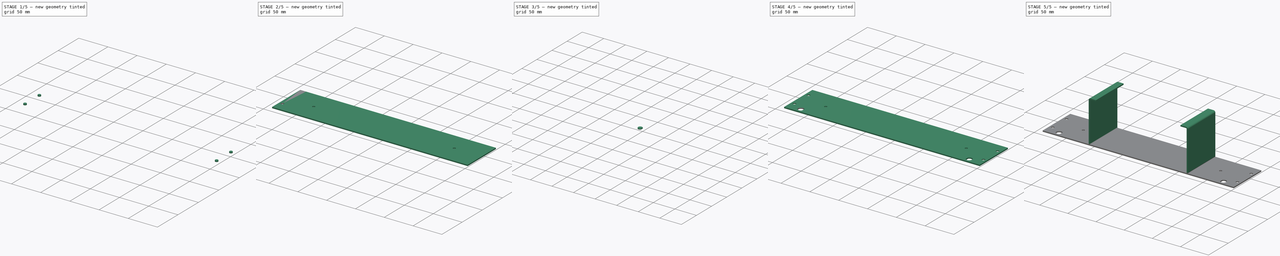
[diagram: build sequence overview — one tinted view per stage of 5, left to right]
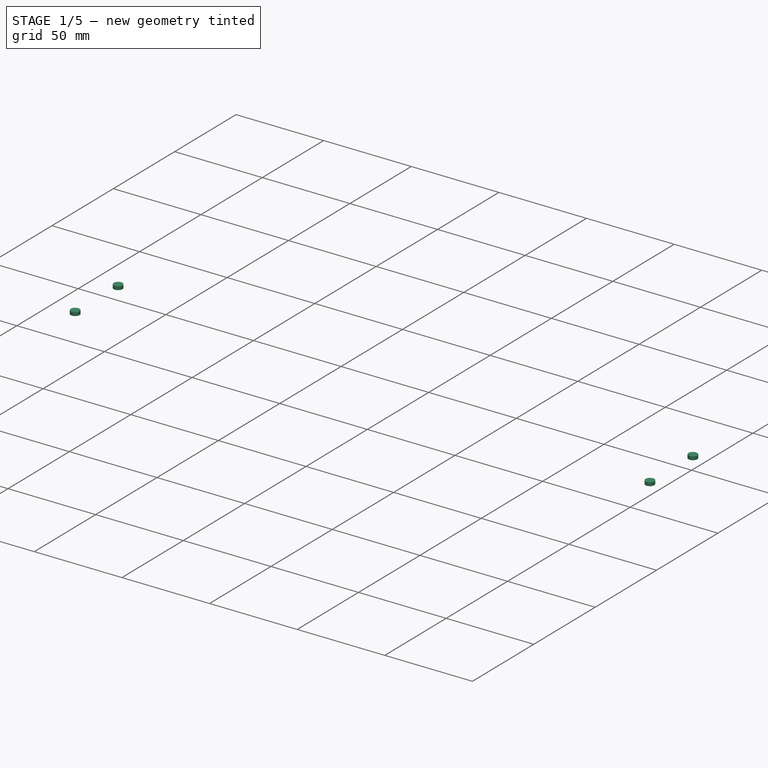
[diagram: stage 1 of 5 — iso view after this stage's code; geometry added in this stage tinted green]
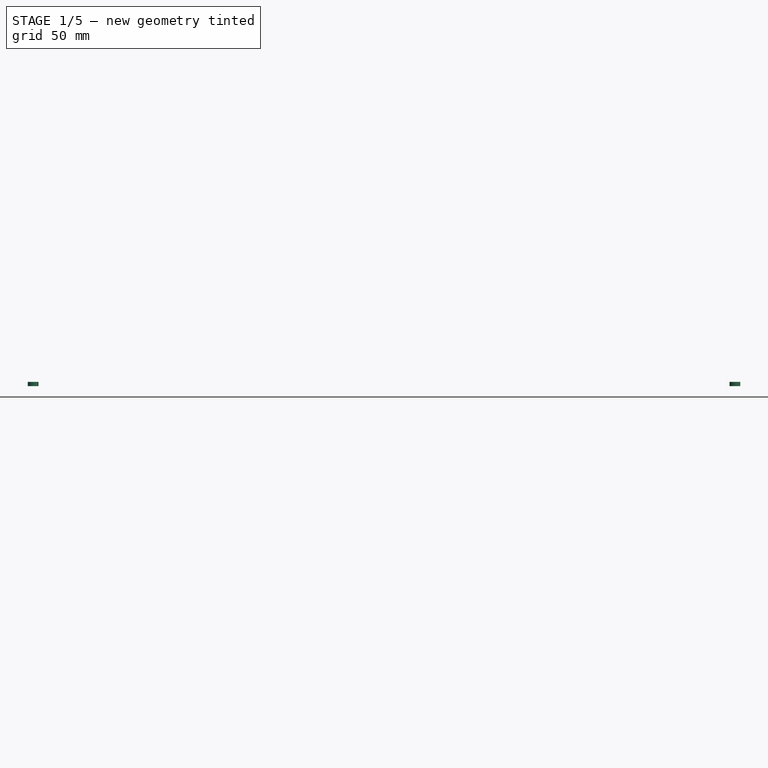
[diagram: stage 1 of 5 — front view after this stage's code; geometry added in this stage tinted green]
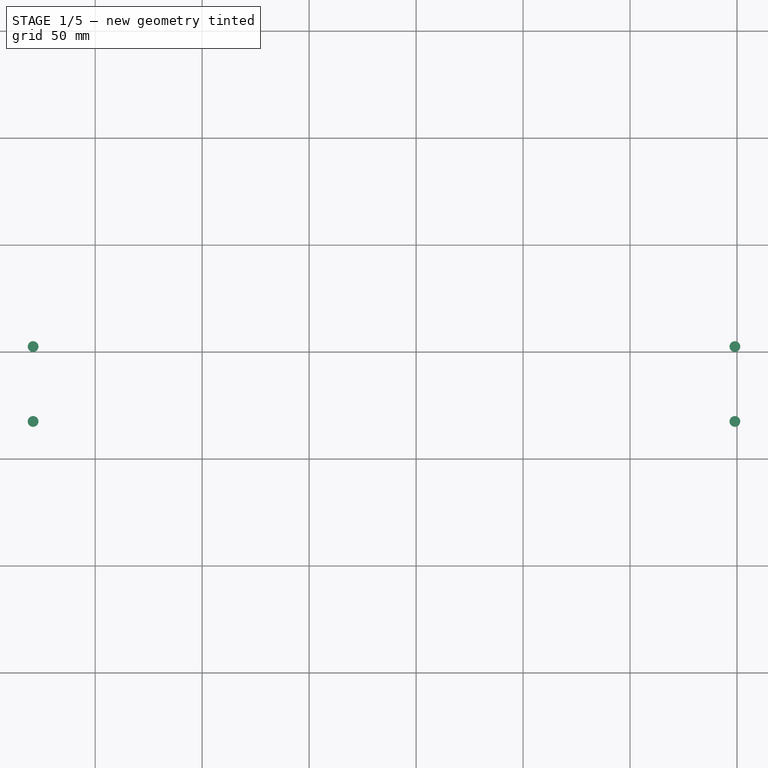
[diagram: stage 1 of 5 — top view after this stage's code; geometry added in this stage tinted green]
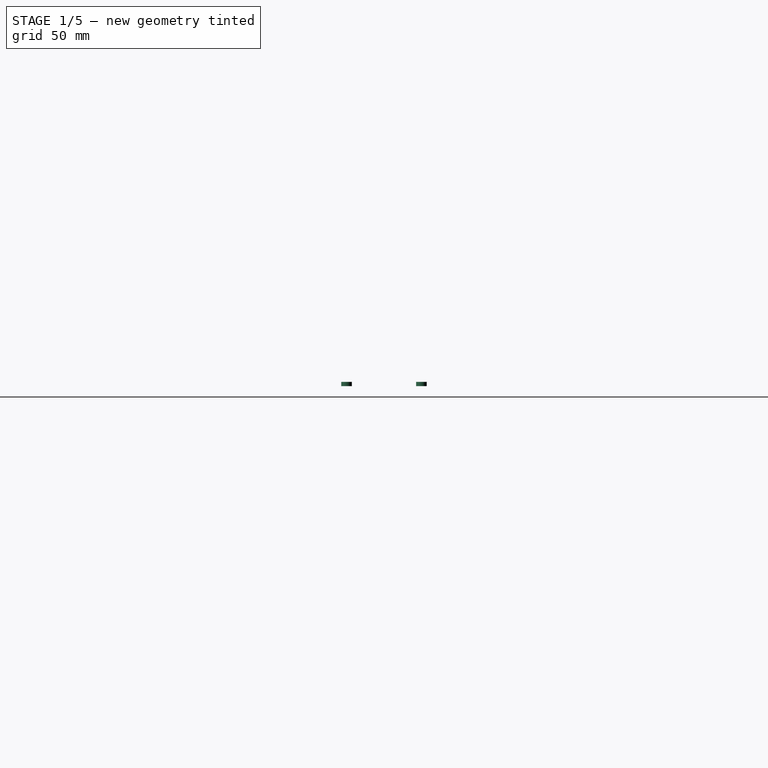
[diagram: stage 1 of 5 — right view after this stage's code; geometry added in this stage tinted green]
FCSTD DOCUMENT  (FreeCAD 0.17R11624 (Git))
Label: cover_base_unfolded
License: All rights reserved
LicenseURL: http://en.wikipedia.org/wiki/All_rights_reserved
objects: Drawing::FeatureViewPython×41, Part::Cut×8, Part::Cylinder×6, Part::FeaturePython×4, Sketcher::SketchObject×2, Part::Extrusion×2, Part::Box×1, Part::Feature×1, Drawing::FeatureViewPart×1, Part::Chamfer×1, Drawing::FeaturePage×1
note: 25 computed .brp shape members not serialized (recipe doc carries the construction recipe); baked Part::Feature solids carry a one-line shape summary decoded from their .brp

FEATURE [Part::Cylinder] Cylinder002  label="Top Hole Tool 1"
  Angle = 360
  AttacherType = Attacher::AttachEngine3D
  Height = 2
  Placement = pos=(-79,17.5,0) rot=(0,0,1;0rad)
  Radius = 2.5
FEATURE [Part::Cylinder] Cylinder003  label="Top Hole Tool 2"
  Angle = 360
  AttacherType = Attacher::AttachEngine3D
  Height = 2
  Placement = pos=(-79,52.5,0) rot=(0,0,1;0rad)
  Radius = 2.5
FEATURE [Part::Cylinder] Cylinder004  label="Top Hole Tool 3"
  Angle = 360
  AttacherType = Attacher::AttachEngine3D
  Height = 2
  Placement = pos=(249,17.5,0) rot=(0,0,1;0rad)
  Radius = 2.5
FEATURE [Part::Cylinder] Cylinder005  label="Top Hole Tool 4"
  Angle = 360
  AttacherType = Attacher::AttachEngine3D
  Height = 2
  Placement = pos=(249,52.5,0) rot=(0,0,1;0rad)
  Radius = 2.5
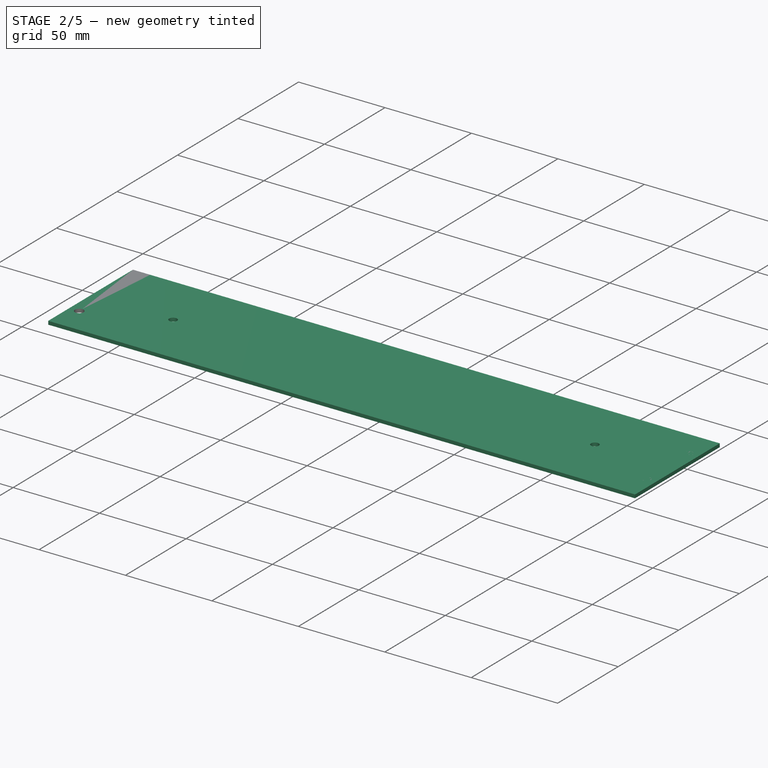
[diagram: stage 2 of 5 — iso view after this stage's code; geometry added in this stage tinted green]
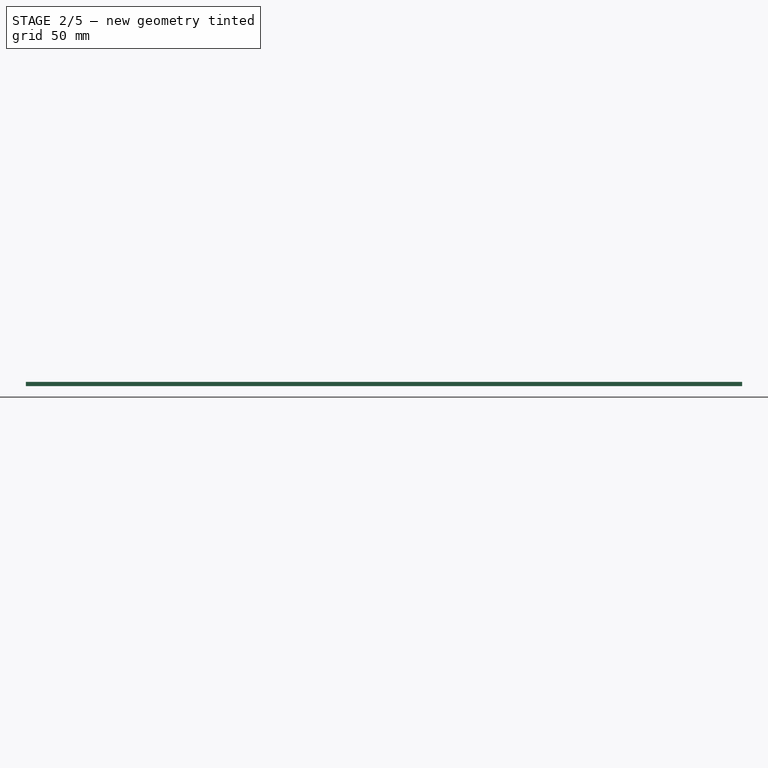
[diagram: stage 2 of 5 — front view after this stage's code; geometry added in this stage tinted green]
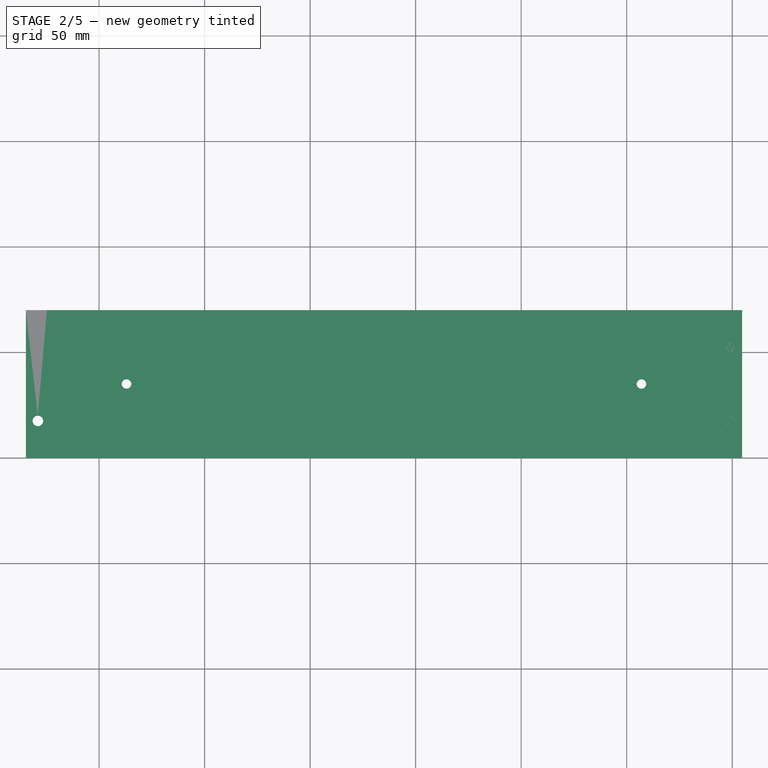
[diagram: stage 2 of 5 — top view after this stage's code; geometry added in this stage tinted green]
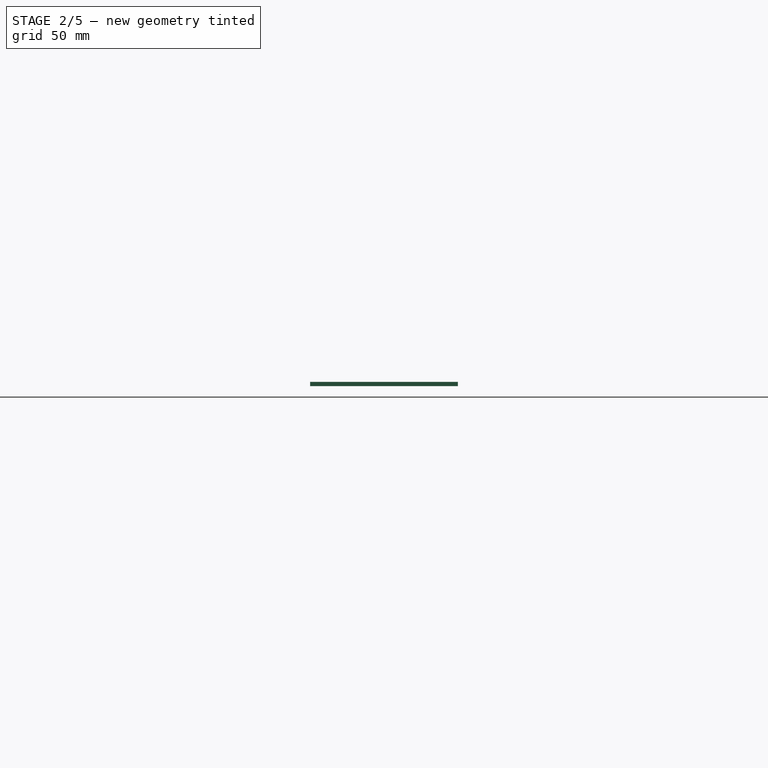
[diagram: stage 2 of 5 — right view after this stage's code; geometry added in this stage tinted green]
FEATURE [Part::Feature] Unfold
  shape: bbox 339.4 x 70 x 2 mm, 38 faces (baked)
FEATURE [Part::Cylinder] Cylinder  label="Core Mounting Hole Tool"
  Angle = 360
  AttacherType = Attacher::AttachEngine3D
  Height = 2
  Placement = pos=(-37,35,0) rot=(0,0,1;0rad)
  Radius = 2.25
FEATURE [Part::Cut] Cut
  Base = -> Unfold
  Tool = -> Cylinder
FEATURE [Part::Cylinder] Cylinder001  label="Core Mounting Hole Tool001"
  Angle = 360
  AttacherType = Attacher::AttachEngine3D
  Height = 2
  Placement = pos=(207,35,0) rot=(0,0,1;0rad)
  Radius = 2.25
FEATURE [Part::Cut] Cut001
  Base = -> Cut
  Tool = -> Cylinder001
FEATURE [Part::Cut] Cut002
  Base = -> Cut001
  Tool = -> Cylinder002
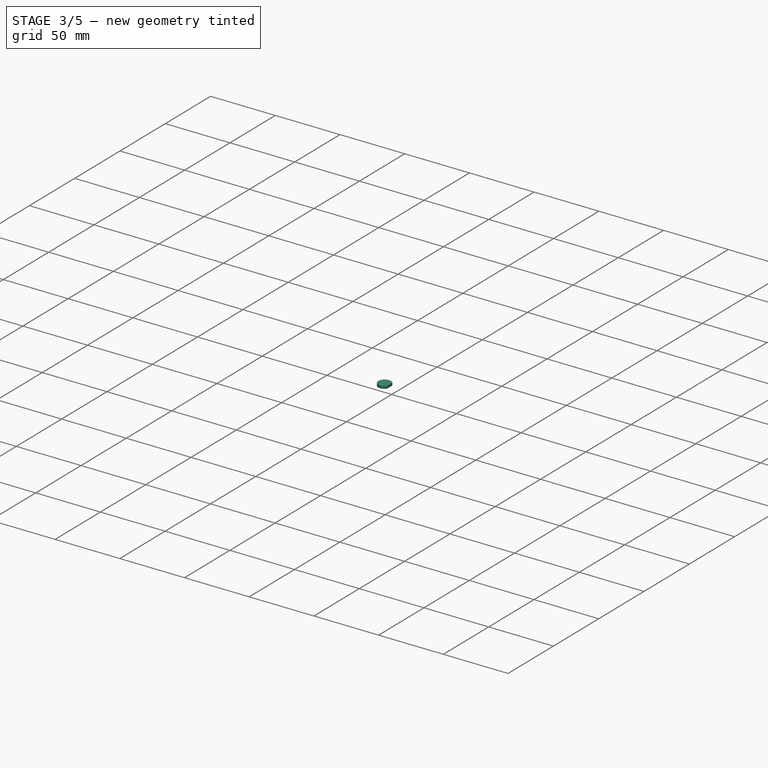
[diagram: stage 3 of 5 — iso view after this stage's code; geometry added in this stage tinted green]
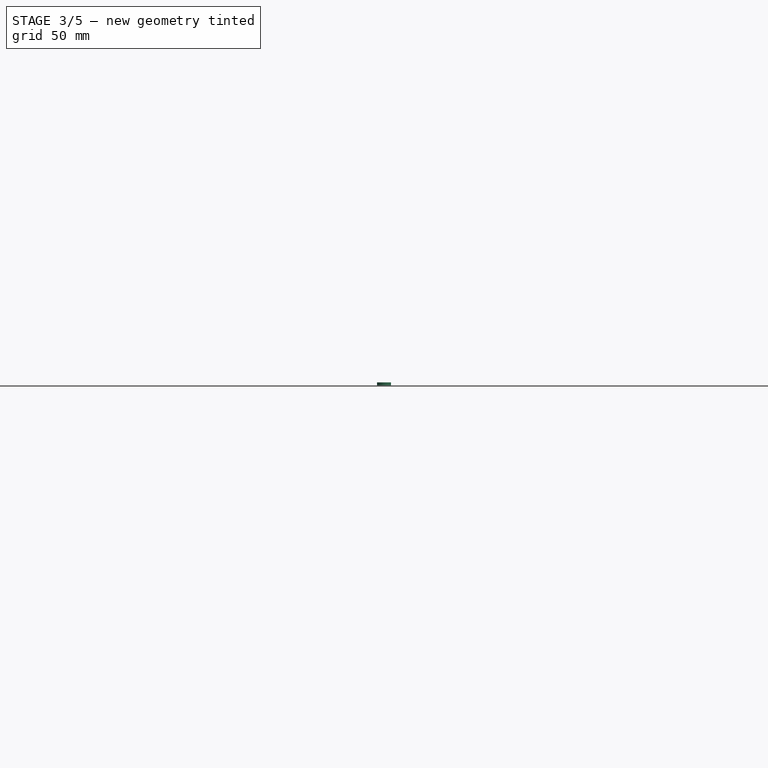
[diagram: stage 3 of 5 — front view after this stage's code; geometry added in this stage tinted green]
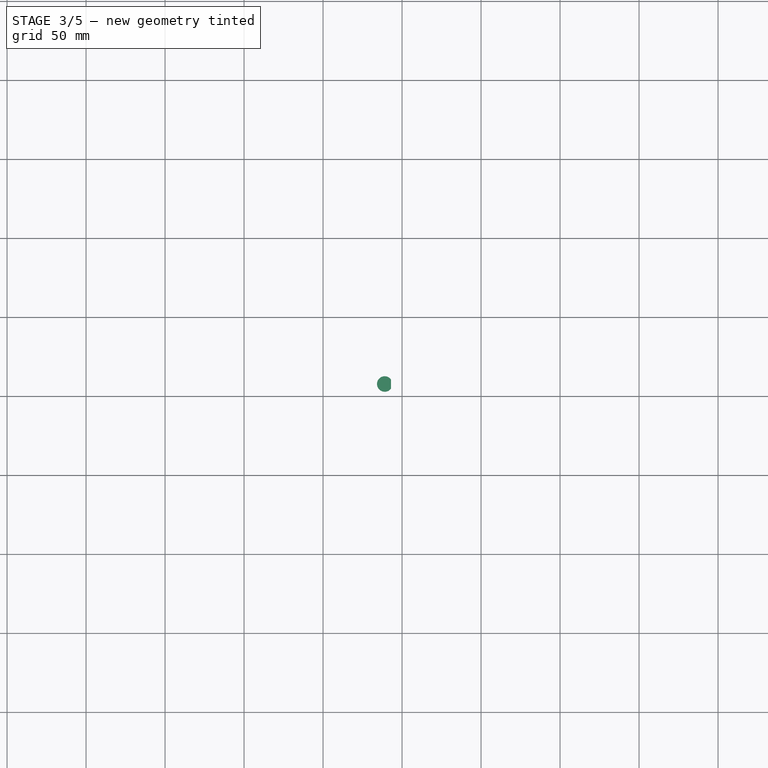
[diagram: stage 3 of 5 — top view after this stage's code; geometry added in this stage tinted green]
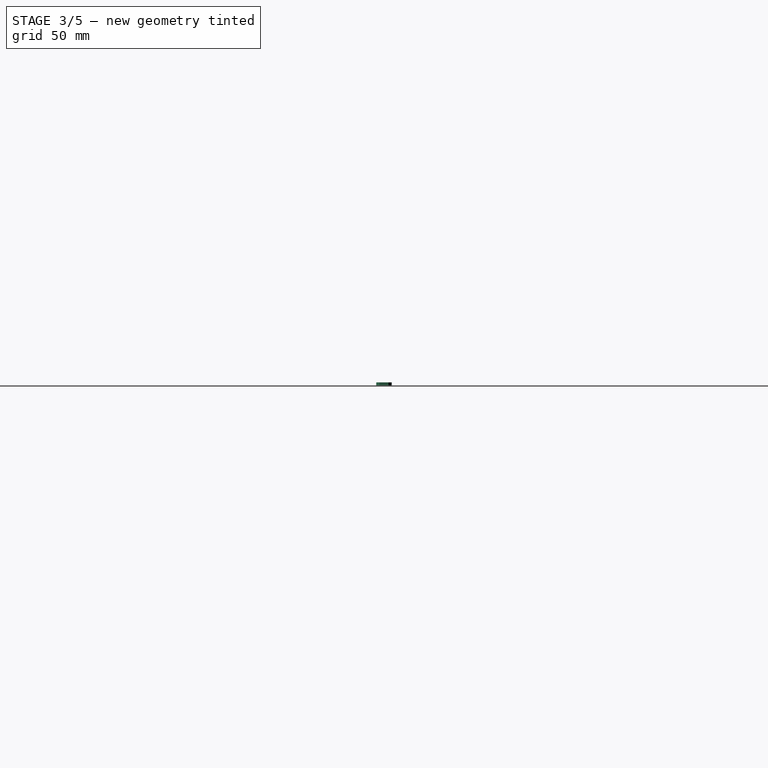
[diagram: stage 3 of 5 — right view after this stage's code; geometry added in this stage tinted green]
FEATURE [Part::Cut] Cut003
  Base = -> Cut002
  Tool = -> Cylinder003
FEATURE [Part::Cut] Cut004
  Base = -> Cut003
  Tool = -> Cylinder004
FEATURE [Part::Cut] Cut005
  Base = -> Cut004
  Tool = -> Cylinder005
FEATURE [Sketcher::SketchObject] Sketch
  MapMode = 5
  Placement = pos=(0,0,2) rot=(0,0,1;0rad)
  Support = -> [Cut005]
  sketch-geometry (2):
    g0: LineSegment StartX=-57 StartY=10.75 StartZ=0 EndX=-57 EndY=5 EndZ=0
    g1: ArcOfCircle CenterX=-60.9679 CenterY=7.875 CenterZ=0 NormalX=0 NormalY=0 NormalZ=1 Radius=4.9 StartAngle=0.627021 EndAngle=5.65616
  constraints (7):
    c: Vertical(g0)
    c: DistanceX(g0,g-1) = 57
    c: DistanceY(g-1,g0) = 5
    c: DistanceY(g-1,g0) = 10.75
    c: Coincident(g1,g0)
    c: Coincident(g0,g1)
    c: Radius(g1) = 4.9
FEATURE [Part::Extrusion] Extrude
  Base = -> Sketch
  Dir = (0,0,1)
  DirMode = 2
  FaceMakerClass = Part::FaceMakerBullseye
  LengthFwd = 2
  LengthRev = 0
  Reversed = true
  Solid = true
  Symmetric = false
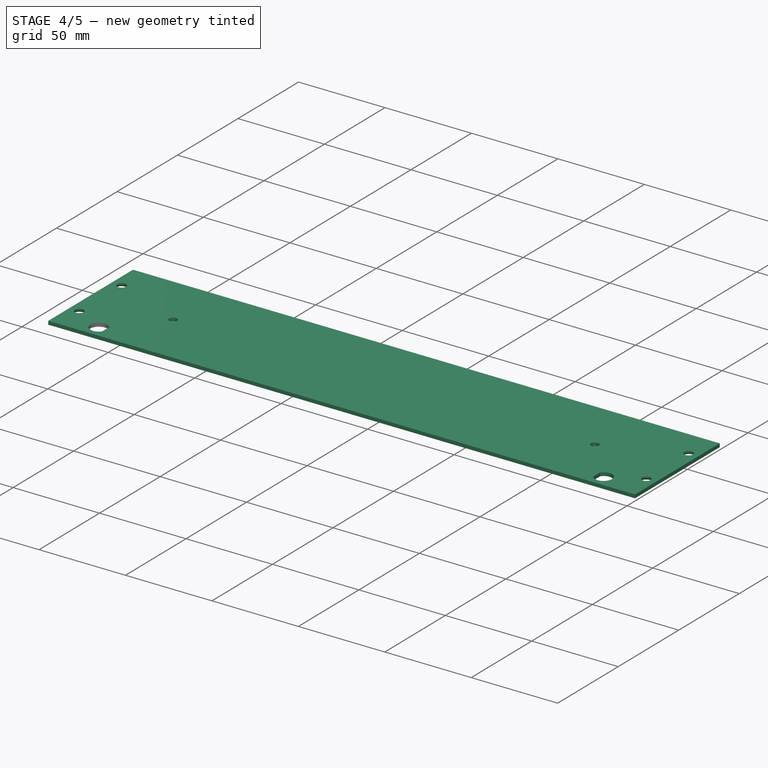
[diagram: stage 4 of 5 — iso view after this stage's code; geometry added in this stage tinted green]
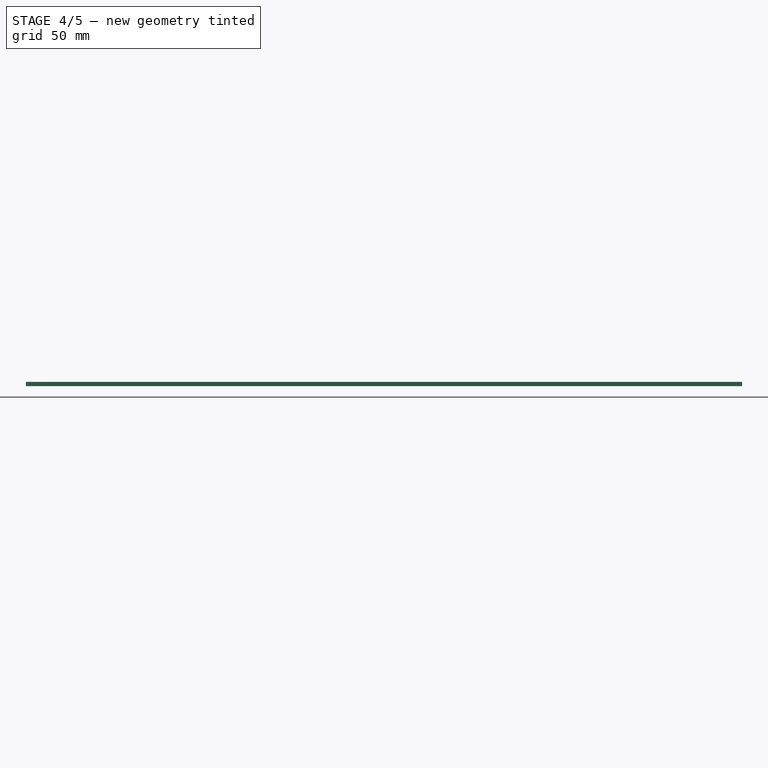
[diagram: stage 4 of 5 — front view after this stage's code; geometry added in this stage tinted green]
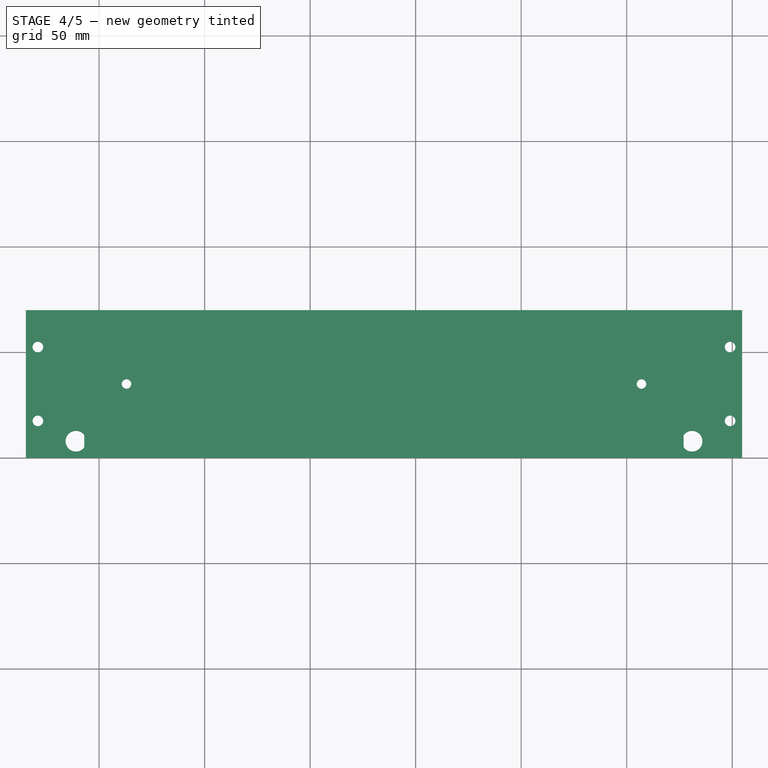
[diagram: stage 4 of 5 — top view after this stage's code; geometry added in this stage tinted green]
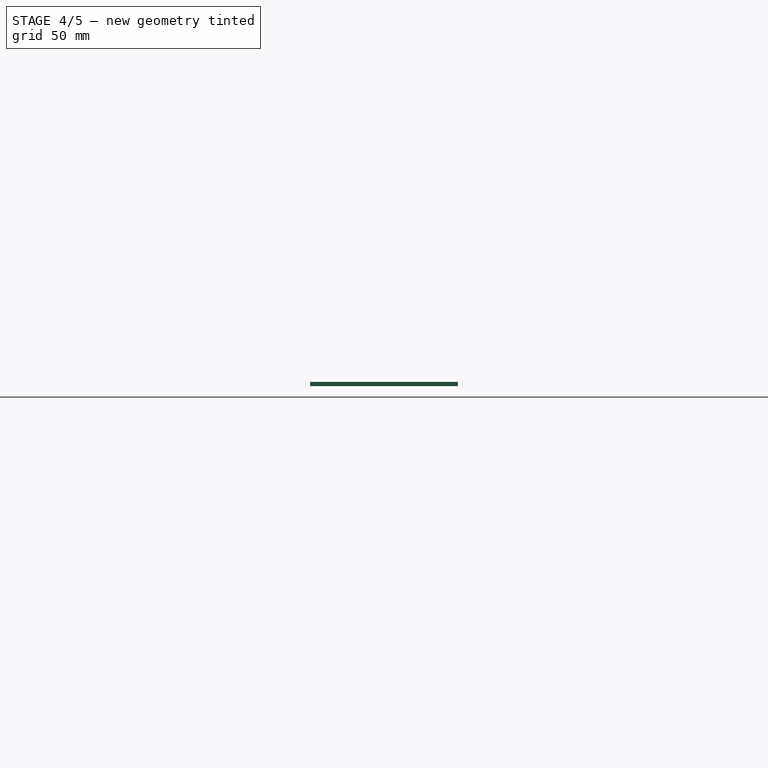
[diagram: stage 4 of 5 — right view after this stage's code; geometry added in this stage tinted green]
FEATURE [Part::Box] Box  label="Cube"
  AttacherType = Attacher::AttachEngine3D
  Height = 2
  Length = 170
  Width = 70
FEATURE [Part::Cut] Cut006
  Base = -> Cut005
  Tool = -> Extrude
FEATURE [Sketcher::SketchObject] Sketch001
  MapMode = 5
  Placement = pos=(0,0,2) rot=(0,0,1;0rad)
  Support = -> [Cut006]
  sketch-geometry (2):
    g0: LineSegment StartX=227 StartY=10.75 StartZ=0 EndX=227 EndY=5 EndZ=0
    g1: ArcOfCircle CenterX=230.968 CenterY=7.875 CenterZ=0 NormalX=0 NormalY=0 NormalZ=1 Radius=4.9 StartAngle=3.76861 EndAngle=8.79776
  constraints (7):
    c: Coincident(g1,g0)
    c: Coincident(g1,g0)
    c: Vertical(g0)
    c: Radius(g1) = 4.9
    c: DistanceX(g-1,g0) = 227
    c: DistanceY(g-1,g0) = 5
    c: DistanceY(g-1,g0) = 10.75
FEATURE [Part::Extrusion] Extrude001
  Base = -> Sketch001
  Dir = (0,0,1)
  DirMode = 2
  FaceMakerClass = Part::FaceMakerBullseye
  LengthFwd = 2
  LengthRev = 0
  Reversed = true
  Solid = true
  Symmetric = false
FEATURE [Part::Cut] Cut007
  Base = -> Cut006
  Tool = -> Extrude001
FEATURE [Drawing::FeatureViewPart] Ortho001  label="Ortho_0_1"
  Direction = (0,0,1)
  HiddenWidth = 0.15
  LineWidth = 0.35
  Rotation = 0
  ShowHiddenLines = true
  ShowSmoothLines = false
  Source = -> Cut007
  Tolerance = 0.05
  ViewResult = <blob: 3761 chars omitted>
  Visible = true
  X = 120.5
  Y = 120
FEATURE [Drawing::FeatureViewPython] dim001  # drawing view (typed FeaturePython)
  Rotation = 0
  ViewResult = <g> <line x1="35.789200" y1="122.000000" x2="35.789200" y2="196.477098" style="stroke:rgb(0,0,255);stroke-width:0.50" />\n<line x1="375.211000" y1="122.000000" x2="375.211000" y2="196.477098" style="stroke:rgb(0,0,255);stroke-width:0.50" />\n<line x1="35.789200" y1="195.477098" x2="375.211000" y2="195.477098" style="stroke:rgb(0,0,255);stroke-width:0.50" />\n<polygon points="35.789200,195.477098 38.789200,196.477098 39.789200,195.477098 38.789200,194.477098" style="fill:rgb(0,0,255);stroke:rgb(0,0,255);stroke-width:0" />\n<polygon points="375.211000,195.477098 372.211000,194.477098 371.211000,195.477098 372.211000,196.477098" style="fill:rgb(0,0,255);stroke:rgb(0,0,255);stroke-width:0" />\n<text x="205.500100" y="193.477098" font-family="inherit" font-size="3.6" fill="rgb(0,0,255)" text-anchor="middle" transform="rotate(0.000000 205.500100,193.477098)" >339.422</text> </g> 
  Visible = true
  X = 0
  Y = 0
  arrowL1 = 3
  arrowL2 = 1
  arrowW = 2
  arrow_scheme = 0
  autoPlaceOffset = 2
  autoPlaceText = true
  click1_x = 323.933
  click1_y = 195.477
  click2_x = 323.933
  click2_y = 195.477
  comma_decimal_place = false
  dimension_line_overshoot = 1
  gap_datum_points = 2
  halfDimension_linear = false
  lineColor = rgb(0,0,255)
  strokeWidth = 0.5
  textFormat_linear = %(value)3.3f
  textRenderer_color = rgb(0,0,255)
  textRenderer_family = inherit
  textRenderer_size = 3.6
  unit_custom_scale = 1
  unit_scheme = 0
FEATURE [Drawing::FeatureViewPython] dim003  # drawing view (typed FeaturePython)
  Rotation = 0
  ViewResult = <g> \n  <line x1="33.789200" y1="120.000000" x2="19.664722" y2="120.000000" style="stroke:rgb(0,0,255);stroke-width:0.50" />\n<line x1="33.789200" y1="50.000000" x2="19.664722" y2="50.000000" style="stroke:rgb(0,0,255);stroke-width:0.50" />\n<line x1="20.664722" y1="120.000000" x2="20.664722" y2="50.000000" style="stroke:rgb(0,0,255);stroke-width:0.50" /> \n  <polygon points="20.664722,50.000000 19.664722,53.000000 20.664722,54.000000 21.664722,53.000000" style="fill:rgb(0,0,255);stroke:rgb(0,0,255);stroke-width:0" /><polygon points="20.664722,120.000000 21.664722,117.000000 20.664722,116.000000 19.664722,117.000000" style="fill:rgb(0,0,255);stroke:rgb(0,0,255);stroke-width:0" /> \n  <text x="18.664722" y="85.000000" font-family="inherit" font-size="3.6" fill="rgb(0,0,255)" text-anchor="middle" transform="rotate(-90.000000 18.664722,85.000000)" >70</text> </g>
  Visible = true
  X = 0
  Y = 0
  arrowL1 = 3
  arrowL2 = 1
  arrowW = 2
  arrow_scheme = 0
  autoPlaceOffset = 2
  autoPlaceText = true
  click1_x = 20.6647
  click1_y = 107.792
  click2_x = 20.6647
  click2_y = 107.792
  comma_decimal_place = false
  dimension_line_overshoot = 1
  gap_datum_points = 2
  halfDimension_linear = false
  lineColor = rgb(0,0,255)
  strokeWidth = 0.5
  textFormat_linear = %(value)3.3f
  textRenderer_color = rgb(0,0,255)
  textRenderer_family = inherit
  textRenderer_size = 3.6
  unit_custom_scale = 1
  unit_scheme = 0
FEATURE [Drawing::FeatureViewPython] dim004  # drawing view (typed FeaturePython)
  Rotation = 0
  ViewResult = <g> <line x1="347.500000" y1="117.000000" x2="347.500000" y2="168.228794" style="stroke:rgb(0,0,255);stroke-width:0.50" />\n<line x1="35.789200" y1="122.000000" x2="35.789200" y2="168.228794" style="stroke:rgb(0,0,255);stroke-width:0.50" />\n<line x1="347.500000" y1="167.228794" x2="35.789200" y2="167.228794" style="stroke:rgb(0,0,255);stroke-width:0.50" />\n<polygon points="347.500000,167.228794 344.500000,166.228794 343.500000,167.228794 344.500000,168.228794" style="fill:rgb(0,0,255);stroke:rgb(0,0,255);stroke-width:0" />\n<polygon points="35.789200,167.228794 38.789200,168.228794 39.789200,167.228794 38.789200,166.228794" style="fill:rgb(0,0,255);stroke:rgb(0,0,255);stroke-width:0" />\n<text x="191.644600" y="165.228794" font-family="inherit" font-size="3.6" fill="rgb(0,0,255)" text-anchor="middle" transform="rotate(0.000000 191.644600,165.228794)" >311.711</text> </g> 
  Visible = true
  X = 0
  Y = 0
  arrowL1 = 3
  arrowL2 = 1
  arrowW = 2
  arrow_scheme = 0
  autoPlaceOffset = 2
  autoPlaceText = true
  click1_x = 58.632
  click1_y = 167.229
  click2_x = 58.632
  click2_y = 167.229
  comma_decimal_place = false
  dimension_line_overshoot = 1
  gap_datum_points = 2
  halfDimension_linear = false
  lineColor = rgb(0,0,255)
  strokeWidth = 0.5
  textFormat_linear = %(value)3.3f
  textRenderer_color = rgb(0,0,255)
  textRenderer_family = inherit
  textRenderer_size = 3.6
  unit_custom_scale = 1
  unit_scheme = 0
FEATURE [Drawing::FeatureViewPython] centerLines001  # drawing view (typed FeaturePython)
  Rotation = 0
  ViewResult = <blob: 4965 chars omitted>
  Visible = true
  X = 0
  Y = 0
  centerLine_color = rgb(0,0,255)
  centerLine_len_dash = 6
  centerLine_len_dot = 3
  centerLine_len_gap = 2
  centerLine_width = 0.32
  click1_x = 84.0069
  click1_y = 119.863
  click2_x = 83.4987
  click2_y = 50.4533
FEATURE [Drawing::FeatureViewPython] centerLines002  # drawing view (typed FeaturePython)
  Rotation = 0
  ViewResult = <blob: 5563 chars omitted>
  Visible = true
  X = 0
  Y = 0
  centerLine_color = rgb(0,0,255)
  centerLine_len_dash = 6
  centerLine_len_dot = 3
  centerLine_len_gap = 2
  centerLine_width = 0.32
  click1_x = 41.6018
  click1_y = 120.38
  click2_x = 41.6018
  click2_y = 50.1583
FEATURE [Drawing::FeatureViewPython] centerLines003  # drawing view (typed FeaturePython)
  Rotation = 0
  ViewResult = <g transform="scale(1.000000,1.000000)" stroke="rgb(0,0,255)"  stroke-width="0.320000" > <path d="M 369.500000,102.500000 L 369.500000,105.500000 M 369.500000,107.500000 L 369.500000,113.500000 M 369.500000,115.500000 L 369.500000,118.500000 "/>\n<path d="M 369.500000,102.500000 L 366.500000,102.500000 M 364.500000,102.500000 L 358.500000,102.500000 M 356.500000,102.500000 L 353.500000,102.500000 M 351.500000,102.500000 L 345.500000,102.500000 M 343.500000,102.500000 L 340.500000,102.500000 M 338.500000,102.500000 L 332.500000,102.500000 M 330.500000,102.500000 L 327.500000,102.500000 "/>\n<path d="M 369.500000,102.500000 L 369.500000,99.500000 M 369.500000,97.500000 L 369.500000,91.500000 M 369.500000,89.500000 L 369.500000,86.500000 M 369.500000,84.500000 L 369.500000,78.500000 M 369.500000,76.500000 L 369.500000,73.500000 M 369.500000,71.500000 L 369.500000,65.500000 M 369.500000,63.500000 L 369.500000,60.500000 M 369.500000,58.500000 L 369.500000,52.500000 "/>\n<path d="M 369.500000,102.500000 L 366.500000,102.500000 M 364.500000,102.500000 L 358.500000,102.500000 M 356.500000,102.500000 L 353.500000,102.500000 M 351.500000,102.500000 L 345.500000,102.500000 M 343.500000,102.500000 L 340.500000,102.500000 M 338.500000,102.500000 L 332.500000,102.500000 M 330.500000,102.500000 L 327.500000,102.500000 "/> </g> 
  Visible = true
  X = 0
  Y = 0
  centerLine_color = rgb(0,0,255)
  centerLine_len_dash = 6
  centerLine_len_dot = 3
  centerLine_len_gap = 2
  centerLine_width = 0.32
  click1_x = 327.15
  click1_y = 118.964
  click2_x = 327.15
  click2_y = 50.5595
FEATURE [Drawing::FeatureViewPython] centerLines004  # drawing view (typed FeaturePython)
  Rotation = 0
  ViewResult = <blob: 3039 chars omitted>
  Visible = true
  X = 0
  Y = 0
  centerLine_color = rgb(0,0,255)
  centerLine_len_dash = 6
  centerLine_len_dot = 3
  centerLine_len_gap = 2
  centerLine_width = 0.32
  click1_x = 373.886
  click1_y = 82.8496
  click2_x = 36.1139
  click2_y = 84.1242
FEATURE [Drawing::FeatureViewPython] centerLines005  # drawing view (typed FeaturePython)
  Rotation = 0
  ViewResult = <g transform="scale(1.000000,1.000000)" stroke="rgb(0,0,255)"  stroke-width="0.320000" > <path d="M 369.500000,102.500000 L 369.500000,105.500000 M 369.500000,107.500000 L 369.500000,113.500000 M 369.500000,115.500000 L 369.500000,118.500000 "/>\n<path d="M 369.500000,102.500000 L 370.061687,102.500000 "/>\n<path d="M 369.500000,102.500000 L 369.500000,99.500000 M 369.500000,97.500000 L 369.500000,91.500000 M 369.500000,89.500000 L 369.500000,86.500000 M 369.500000,84.500000 L 369.500000,78.500000 M 369.500000,76.500000 L 369.500000,73.500000 M 369.500000,71.500000 L 369.500000,65.500000 M 369.500000,63.500000 L 369.500000,60.500000 M 369.500000,58.500000 L 369.500000,52.500000 "/>\n<path d="M 369.500000,102.500000 L 368.362207,102.500000 "/> </g> 
  Visible = true
  X = 0
  Y = 0
  centerLine_color = rgb(0,0,255)
  centerLine_len_dash = 6
  centerLine_len_dot = 3
  centerLine_len_gap = 2
  centerLine_width = 0.32
  click1_x = 370.062
  click1_y = 118.964
  click2_x = 368.362
  click2_y = 50.5595
FEATURE [Drawing::FeatureViewPython] dim002  # drawing view (typed FeaturePython)
  Rotation = 0
  ViewResult = <g> <line x1="35.789200" y1="48.000000" x2="35.789200" y2="39.978965" style="stroke:rgb(0,0,255);stroke-width:0.50" />\n<line x1="41.601845" y1="100.499930" x2="41.601845" y2="39.978965" style="stroke:rgb(0,0,255);stroke-width:0.50" />\n<line x1="35.789200" y1="40.978965" x2="41.601845" y2="40.978965" style="stroke:rgb(0,0,255);stroke-width:0.50" />\n<polygon points="35.789200,40.978965 32.789200,39.978965 31.789200,40.978965 32.789200,41.978965" style="fill:rgb(0,0,255);stroke:rgb(0,0,255);stroke-width:0" />\n<polygon points="41.601845,40.978965 44.601845,41.978965 45.601845,40.978965 44.601845,39.978965" style="fill:rgb(0,0,255);stroke:rgb(0,0,255);stroke-width:0" />\n<text x="38.695522" y="38.978965" font-family="inherit" font-size="3.6" fill="rgb(0,0,255)" text-anchor="middle" transform="rotate(0.000000 38.695522,38.978965)" >5.813</text> </g> 
  Visible = true
  X = 0
  Y = 0
  arrowL1 = 3
  arrowL2 = 1
  arrowW = 2
  arrow_scheme = 0
  autoPlaceOffset = 2
  autoPlaceText = true
  click1_x = 41.5936
  click1_y = 40.979
  click2_x = 41.5936
  click2_y = 40.979
  comma_decimal_place = false
  dimension_line_overshoot = 1
  gap_datum_points = 2
  halfDimension_linear = false
  lineColor = rgb(0,0,255)
  strokeWidth = 0.5
  textFormat_linear = %(value)3.3f
  textRenderer_color = rgb(0,0,255)
  textRenderer_family = inherit
  textRenderer_size = 3.6
  unit_custom_scale = 1
  unit_scheme = 0
FEATURE [Drawing::FeatureViewPython] dim006  # drawing view (typed FeaturePython)
  Rotation = 0
  ViewResult = <g> <line x1="63.500000" y1="117.000000" x2="63.500000" y2="139.967864" style="stroke:rgb(0,0,255);stroke-width:0.50" />\n<line x1="35.789200" y1="122.000000" x2="35.789200" y2="139.967864" style="stroke:rgb(0,0,255);stroke-width:0.50" />\n<line x1="63.500000" y1="138.967864" x2="35.789200" y2="138.967864" style="stroke:rgb(0,0,255);stroke-width:0.50" />\n<polygon points="63.500000,138.967864 60.500000,137.967864 59.500000,138.967864 60.500000,139.967864" style="fill:rgb(0,0,255);stroke:rgb(0,0,255);stroke-width:0" />\n<polygon points="35.789200,138.967864 38.789200,139.967864 39.789200,138.967864 38.789200,137.967864" style="fill:rgb(0,0,255);stroke:rgb(0,0,255);stroke-width:0" />\n<text x="49.644600" y="136.967864" font-family="inherit" font-size="3.6" fill="rgb(0,0,255)" text-anchor="middle" transform="rotate(0.000000 49.644600,136.967864)" >27.711</text> </g> 
  Visible = true
  X = 0
  Y = 0
  arrowL1 = 3
  arrowL2 = 1
  arrowW = 2
  arrow_scheme = 0
  autoPlaceOffset = 2
  autoPlaceText = true
  click1_x = 46.6177
  click1_y = 138.968
  click2_x = 46.6177
  click2_y = 138.968
  comma_decimal_place = false
  dimension_line_overshoot = 1
  gap_datum_points = 2
  halfDimension_linear = false
  lineColor = rgb(0,0,255)
  strokeWidth = 0.5
  textFormat_linear = %(value)3.3f
  textRenderer_color = rgb(0,0,255)
  textRenderer_family = inherit
  textRenderer_size = 3.6
  unit_custom_scale = 1
  unit_scheme = 0
FEATURE [Drawing::FeatureViewPython] dim007  # drawing view (typed FeaturePython)
  Rotation = 0
  ViewResult = <g> <line x1="35.789200" y1="122.000000" x2="35.789200" y2="182.096548" style="stroke:rgb(0,0,255);stroke-width:0.50" />\n<line x1="369.500000" y1="120.500070" x2="369.500000" y2="182.096548" style="stroke:rgb(0,0,255);stroke-width:0.50" />\n<line x1="35.789200" y1="181.096548" x2="369.500000" y2="181.096548" style="stroke:rgb(0,0,255);stroke-width:0.50" />\n<polygon points="35.789200,181.096548 38.789200,182.096548 39.789200,181.096548 38.789200,180.096548" style="fill:rgb(0,0,255);stroke:rgb(0,0,255);stroke-width:0" />\n<polygon points="369.500000,181.096548 366.500000,180.096548 365.500000,181.096548 366.500000,182.096548" style="fill:rgb(0,0,255);stroke:rgb(0,0,255);stroke-width:0" />\n<text x="202.644600" y="179.096548" font-family="inherit" font-size="3.6" fill="rgb(0,0,255)" text-anchor="middle" transform="rotate(0.000000 202.644600,179.096548)" >333.711</text> </g> 
  Visible = true
  X = 0
  Y = 0
  arrowL1 = 3
  arrowL2 = 1
  arrowW = 2
  arrow_scheme = 0
  autoPlaceOffset = 2
  autoPlaceText = true
  click1_x = 354.24
  click1_y = 181.097
  click2_x = 354.24
  click2_y = 181.097
  comma_decimal_place = false
  dimension_line_overshoot = 1
  gap_datum_points = 2
  halfDimension_linear = false
  lineColor = rgb(0,0,255)
  strokeWidth = 0.5
  textFormat_linear = %(value)3.3f
  textRenderer_color = rgb(0,0,255)
  textRenderer_family = inherit
  textRenderer_size = 3.6
  unit_custom_scale = 1
  unit_scheme = 0
FEATURE [Drawing::FeatureViewPython] dim008  # drawing view (typed FeaturePython)
  Rotation = 0
  ViewResult = <g> <line x1="35.789200" y1="122.000000" x2="35.789200" y2="159.051604" style="stroke:rgb(0,0,255);stroke-width:0.50" />\n<line x1="369.500000" y1="120.500070" x2="369.500000" y2="159.051604" style="stroke:rgb(0,0,255);stroke-width:0.50" />\n<line x1="35.789200" y1="158.051604" x2="369.500000" y2="158.051604" style="stroke:rgb(0,0,255);stroke-width:0.50" />\n<polygon points="35.789200,158.051604 38.789200,159.051604 39.789200,158.051604 38.789200,157.051604" style="fill:rgb(0,0,255);stroke:rgb(0,0,255);stroke-width:0" />\n<polygon points="369.500000,158.051604 366.500000,157.051604 365.500000,158.051604 366.500000,159.051604" style="fill:rgb(0,0,255);stroke:rgb(0,0,255);stroke-width:0" />\n<text x="202.644600" y="156.051604" font-family="inherit" font-size="3.6" fill="rgb(0,0,255)" text-anchor="middle" transform="rotate(0.000000 202.644600,156.051604)" >333.711</text> </g> 
  Visible = true
  X = 0
  Y = 0
  arrowL1 = 3
  arrowL2 = 1
  arrowW = 2
  arrow_scheme = 0
  autoPlaceOffset = 2
  autoPlaceText = true
  click1_x = 320.777
  click1_y = 158.052
  click2_x = 320.777
  click2_y = 158.052
  comma_decimal_place = false
  dimension_line_overshoot = 1
  gap_datum_points = 2
  halfDimension_linear = false
  lineColor = rgb(0,0,255)
  strokeWidth = 0.5
  textFormat_linear = %(value)3.3f
  textRenderer_color = rgb(0,0,255)
  textRenderer_family = inherit
  textRenderer_size = 3.6
  unit_custom_scale = 1
  unit_scheme = 0
FEATURE [Drawing::FeatureViewPython] centerLines006  # drawing view (typed FeaturePython)
  Rotation = 0
  ViewResult = <blob: 3271 chars omitted>
  Visible = true
  X = 0
  Y = 0
  centerLine_color = rgb(0,0,255)
  centerLine_len_dash = 6
  centerLine_len_dot = 3
  centerLine_len_gap = 2
  centerLine_width = 0.32
  click1_x = 36.5227
  click1_y = 67.2276
  click2_x = 375.245
  click2_y = 68.3191
FEATURE [Drawing::FeatureViewPython] centerLines007  # drawing view (typed FeaturePython)
  Rotation = 0
  ViewResult = <blob: 2813 chars omitted>
  Visible = true
  X = 0
  Y = 0
  centerLine_color = rgb(0,0,255)
  centerLine_len_dash = 6
  centerLine_len_dot = 3
  centerLine_len_gap = 2
  centerLine_width = 0.32
  click1_x = 35.1792
  click1_y = 102.479
  click2_x = 375.755
  click2_y = 102.479
FEATURE [Drawing::FeatureViewPython] centerLines008  # drawing view (typed FeaturePython)
  Rotation = 0
  ViewResult = <blob: 2766 chars omitted>
  Visible = true
  X = 0
  Y = 0
  centerLine_color = rgb(0,0,255)
  centerLine_len_dash = 6
  centerLine_len_dot = 3
  centerLine_len_gap = 2
  centerLine_width = 0.32
  click1_x = 376.061
  click1_y = 111.701
  click2_x = 36.3029
  click2_y = 111.236
FEATURE [Drawing::FeatureViewPython] dim010  # drawing view (typed FeaturePython)
  Rotation = 0
  ViewResult = <g> <line x1="33.789200" y1="120.000000" x2="13.813768" y2="120.000000" style="stroke:rgb(0,0,255);stroke-width:0.50" />\n<line x1="34.467908" y1="112.125000" x2="13.813768" y2="112.125000" style="stroke:rgb(0,0,255);stroke-width:0.50" />\n<line x1="14.813768" y1="120.000000" x2="14.813768" y2="112.125000" style="stroke:rgb(0,0,255);stroke-width:0.50" />\n<polygon points="14.813768,120.000000 13.813768,123.000000 14.813768,124.000000 15.813768,123.000000" style="fill:rgb(0,0,255);stroke:rgb(0,0,255);stroke-width:0" />\n<polygon points="14.813768,112.125000 15.813768,109.125000 14.813768,108.125000 13.813768,109.125000" style="fill:rgb(0,0,255);stroke:rgb(0,0,255);stroke-width:0" />\n<text x="12.813768" y="116.062500" font-family="inherit" font-size="3.2" fill="rgb(0,0,255)" text-anchor="middle" transform="rotate(-90.000000 12.813768,116.062500)" >7.875</text> </g> 
  Visible = true
  X = 0
  Y = 0
  arrowL1 = 3
  arrowL2 = 1
  arrowW = 2
  arrow_scheme = 0
  autoPlaceOffset = 2
  autoPlaceText = true
  click1_x = 14.8138
  click1_y = 110.43
  click2_x = 14.8138
  click2_y = 110.43
  comma_decimal_place = false
  dimension_line_overshoot = 1
  gap_datum_points = 2
  halfDimension_linear = false
  lineColor = rgb(0,0,255)
  strokeWidth = 0.5
  textFormat_linear = %(value)3.3f
  textRenderer_color = rgb(0,0,255)
  textRenderer_family = inherit
  textRenderer_size = 3.2
  unit_custom_scale = 1
  unit_scheme = 0
FEATURE [Drawing::FeatureViewPython] dim011  # drawing view (typed FeaturePython)
  Rotation = 0
  ViewResult = <g> <line x1="377.211000" y1="120.000000" x2="385.936095" y2="120.000000" style="stroke:rgb(0,0,255);stroke-width:0.50" />\n<line x1="377.754953" y1="102.500000" x2="385.936095" y2="102.500000" style="stroke:rgb(0,0,255);stroke-width:0.50" />\n<line x1="384.936095" y1="120.000000" x2="384.936095" y2="102.500000" style="stroke:rgb(0,0,255);stroke-width:0.50" />\n<polygon points="384.936095,120.000000 385.936095,117.000000 384.936095,116.000000 383.936095,117.000000" style="fill:rgb(0,0,255);stroke:rgb(0,0,255);stroke-width:0" />\n<polygon points="384.936095,102.500000 383.936095,105.500000 384.936095,106.500000 385.936095,105.500000" style="fill:rgb(0,0,255);stroke:rgb(0,0,255);stroke-width:0" />\n<text x="382.936095" y="111.250000" font-family="inherit" font-size="3.6" fill="rgb(0,0,255)" text-anchor="middle" transform="rotate(-90.000000 382.936095,111.250000)" >17.5</text> </g> 
  Visible = true
  X = 0
  Y = 0
  arrowL1 = 3
  arrowL2 = 1
  arrowW = 2
  arrow_scheme = 0
  autoPlaceOffset = 2
  autoPlaceText = true
  click1_x = 384.936
  click1_y = 103.089
  click2_x = 384.936
  click2_y = 103.089
  comma_decimal_place = false
  dimension_line_overshoot = 1
  gap_datum_points = 2
  halfDimension_linear = false
  lineColor = rgb(0,0,255)
  strokeWidth = 0.5
  textFormat_linear = %(value)3.3f
  textRenderer_color = rgb(0,0,255)
  textRenderer_family = inherit
  textRenderer_size = 3.6
  unit_custom_scale = 1
  unit_scheme = 0
FEATURE [Drawing::FeatureViewPython] dim012  # drawing view (typed FeaturePython)
  Rotation = 0
  ViewResult = <g> <line x1="377.211000" y1="120.000000" x2="404.691670" y2="120.000000" style="stroke:rgb(0,0,255);stroke-width:0.50" />\n<line x1="371.500010" y1="76.500000" x2="404.691670" y2="76.500000" style="stroke:rgb(0,0,255);stroke-width:0.50" />\n<line x1="403.691670" y1="120.000000" x2="403.691670" y2="76.500000" style="stroke:rgb(0,0,255);stroke-width:0.50" />\n<polygon points="403.691670,120.000000 404.691670,117.000000 403.691670,116.000000 402.691670,117.000000" style="fill:rgb(0,0,255);stroke:rgb(0,0,255);stroke-width:0" />\n<polygon points="403.691670,76.500000 402.691670,79.500000 403.691670,80.500000 404.691670,79.500000" style="fill:rgb(0,0,255);stroke:rgb(0,0,255);stroke-width:0" />\n<text x="401.691670" y="98.250000" font-family="inherit" font-size="3.6" fill="rgb(0,0,255)" text-anchor="middle" transform="rotate(-90.000000 401.691670,98.250000)" >43.5</text> </g> 
  Visible = true
  X = 0
  Y = 0
  arrowL1 = 3
  arrowL2 = 1
  arrowW = 2
  arrow_scheme = 0
  autoPlaceOffset = 2
  autoPlaceText = true
  click1_x = 403.692
  click1_y = 73.0937
  click2_x = 403.692
  click2_y = 73.0937
  comma_decimal_place = false
  dimension_line_overshoot = 1
  gap_datum_points = 2
  halfDimension_linear = false
  lineColor = rgb(0,0,255)
  strokeWidth = 0.5
  textFormat_linear = %(value)3.3f
  textRenderer_color = rgb(0,0,255)
  textRenderer_family = inherit
  textRenderer_size = 3.6
  unit_custom_scale = 1
  unit_scheme = 0
FEATURE [Drawing::FeatureViewPython] text001  # drawing view (typed FeaturePython)
  Rotation = 0
  ViewResult = <g> <text x="279.495190" y="265.589957" font-family="inherit" font-size="5" fill="rgb(0,0,0)" text-anchor="inherit" transform="rotate(0.000000 279.495190,265.589957)" >Research Division, Quazar</text> </g>
  Visible = true
  X = 0
  Y = 0
  click1_x = 279.495
  click1_y = 265.59
  rotation = 0
  text = Research Division, Quazar
  textRenderer_addText_color = rgb(0,0,0)
  textRenderer_addText_family = inherit
  textRenderer_addText_size = 5
FEATURE [Drawing::FeatureViewPython] text002  # drawing view (typed FeaturePython)
  Rotation = 0
  ViewResult = <g> <text x="296.876732" y="238.474752" font-family="inherit" font-size="7" fill="rgb(0,0,0)" text-anchor="inherit" transform="rotate(0.000000 296.876732,238.474752)" >EM Coupling Experiment</text> </g>
  Visible = true
  X = 0
  Y = 0
  click1_x = 296.877
  click1_y = 238.475
  rotation = 0
  text = EM Coupling Experiment
  textRenderer_addText_color = rgb(0,0,0)
  textRenderer_addText_family = inherit
  textRenderer_addText_size = 7
FEATURE [Drawing::FeatureViewPython] text003  # drawing view (typed FeaturePython)
  Rotation = 0
  ViewResult = <g> <text x="307.305657" y="246.817892" font-family="inherit" font-size="5" fill="rgb(0,0,0)" text-anchor="inherit" transform="rotate(0.000000 307.305657,246.817892)" >Cover Base - Features</text> </g>
  Visible = true
  X = 0
  Y = 0
  click1_x = 307.306
  click1_y = 246.818
  rotation = 0
  text = Cover Base - Features
  textRenderer_addText_color = rgb(0,0,0)
  textRenderer_addText_family = inherit
  textRenderer_addText_size = 5
FEATURE [Drawing::FeatureViewPython] dia006  # drawing view (typed FeaturePython)
  Rotation = 0
  ViewResult = <g>  <circle cx ="351.467918" cy ="112.125000" r="0.250000" stroke="none" fill="rgb(0,0,255)" /> \n<line x1="339.270266" y1="97.583276" x2="354.616926" y2="115.879165" style="stroke:rgb(0,0,255);stroke-width:0.50" />\n<polygon points="348.318911,108.370835 349.480718,111.311958 350.889529,111.435460 351.013031,110.026649" style="fill:rgb(0,0,255);stroke:rgb(0,0,255);stroke-width:0" />\n<polygon points="354.616926,115.879165 353.455118,112.938042 352.046307,112.814540 351.922806,114.223351" style="fill:rgb(0,0,255);stroke:rgb(0,0,255);stroke-width:0" />\n<line x1="339.270266" y1="97.583276" x2="330.498736" y2="97.583276" style="stroke:rgb(0,0,255);stroke-width:0.50" />\n<text x="334.884501" y="95.583276" font-family="inherit" font-size="3.6" fill="rgb(0,0,255)" text-anchor="middle" transform="rotate(0.000000 334.884501,95.583276)" >Ø9.8</text> </g>
  Visible = true
  X = 0
  Y = 0
  arrowL1 = 3
  arrowL2 = 1
  arrowW = 2
  arrow_scheme = 0
  autoPlaceOffset = 2
  autoPlaceText = true
  centerPointDia = 0.5
  click1_x = 339.27
  click1_y = 97.5833
  click2_x = 330.499
  click2_y = 98.5231
  click3_x = 330.499
  click3_y = 98.5231
  comma_decimal_place = false
  lineColor = rgb(0,0,255)
  strokeWidth = 0.5
  textFormat_circular = Ø%(value)3.3f
  textRenderer_color = rgb(0,0,255)
  textRenderer_family = inherit
  textRenderer_size = 3.6
  unit_custom_scale = 1
  unit_scheme = 0
FEATURE [Drawing::FeatureViewPython] text004  # drawing view (typed FeaturePython)
  Rotation = 0
  ViewResult = <g> <text x="293.376408" y="222.254854" font-family="inherit" font-size="5" fill="rgb(0,0,0)" text-anchor="inherit" transform="rotate(0.000000 293.376408,222.254854)" >Sheet Thickness - 2.00 mm</text> </g>
  Visible = true
  X = 0
  Y = 0
  click1_x = 293.376
  click1_y = 222.255
  rotation = 0
  text = Sheet Thickness - 2.00 mm
  textRenderer_addText_color = rgb(0,0,0)
  textRenderer_addText_family = inherit
  textRenderer_addText_size = 5
FEATURE [Drawing::FeatureViewPython] dim013  # drawing view (typed FeaturePython)
  Rotation = 0
  ViewResult = <g> \n  <line x1="65.500000" y1="109.250000" x2="77.687436" y2="109.250000" style="stroke:rgb(0,0,255);stroke-width:0.50" />\n<line x1="65.500000" y1="115.000000" x2="77.687436" y2="115.000000" style="stroke:rgb(0,0,255);stroke-width:0.50" />\n<line x1="76.687436" y1="109.250000" x2="76.687436" y2="115.000000" style="stroke:rgb(0,0,255);stroke-width:0.50" /> \n  <polygon points="76.687436,115.000000 75.687436,118.000000 76.687436,119.000000 77.687436,118.000000" style="fill:rgb(0,0,255);stroke:rgb(0,0,255);stroke-width:0" /><polygon points="76.687436,109.250000 77.687436,106.250000 76.687436,105.250000 75.687436,106.250000" style="fill:rgb(0,0,255);stroke:rgb(0,0,255);stroke-width:0" /> \n  <text x="79.687436" y="112.125000" font-family="inherit" font-size="3.6" fill="rgb(0,0,255)" text-anchor="middle" transform="rotate(-90.000000 79.687436,112.125000)" >5.75</text> </g>
  Visible = true
  X = 0
  Y = 0
  arrowL1 = 3
  arrowL2 = 1
  arrowW = 2
  arrow_scheme = 0
  autoPlaceOffset = -3
  autoPlaceText = true
  click1_x = 76.6874
  click1_y = 114.875
  click2_x = 76.6874
  click2_y = 114.875
  comma_decimal_place = false
  dimension_line_overshoot = 1
  gap_datum_points = 2
  halfDimension_linear = false
  lineColor = rgb(0,0,255)
  strokeWidth = 0.5
  textFormat_linear = %(value)3.3f
  textRenderer_color = rgb(0,0,255)
  textRenderer_family = inherit
  textRenderer_size = 3.6
  unit_custom_scale = 1
  unit_scheme = 0
FEATURE [Part::Chamfer] Chamfer
  Base = -> Cut007
  Edges = 4 edges r=1: [Edge18,Edge20,Edge104,Edge106]
FEATURE [Drawing::FeatureViewPython] dia001  # drawing view (typed FeaturePython)
  Rotation = 0
  ViewResult = <g>  <circle cx ="83.500000" cy ="85.000000" r="0.250000" stroke="none" fill="rgb(0,0,255)" /> \n<line x1="90.638913" y1="75.414408" x2="82.156066" y2="86.804533" style="stroke:rgb(0,0,255);stroke-width:0.50" />\n<polygon points="84.843934,83.195467 87.437862,81.386726 87.233151,79.987407 85.833832,80.192118" style="fill:rgb(0,0,255);stroke:rgb(0,0,255);stroke-width:0" />\n<polygon points="82.156066,86.804533 79.562138,88.613274 79.766849,90.012593 81.166168,89.807882" style="fill:rgb(0,0,255);stroke:rgb(0,0,255);stroke-width:0" />\n<line x1="90.638913" y1="75.414408" x2="104.801243" y2="75.414408" style="stroke:rgb(0,0,255);stroke-width:0.50" />\n<text x="97.720078" y="73.414408" font-family="inherit" font-size="3.6" fill="rgb(0,0,255)" text-anchor="middle" transform="rotate(0.000000 97.720078,73.414408)" >Ø4.5</text> </g>
  Visible = true
  X = 0
  Y = 0
  arrowL1 = 3
  arrowL2 = 1
  arrowW = 2
  arrow_scheme = 0
  autoPlaceOffset = 2
  autoPlaceText = true
  centerPointDia = 0.5
  click1_x = 90.6389
  click1_y = 75.4144
  click2_x = 104.801
  click2_y = 75.0603
  click3_x = 104.801
  click3_y = 75.0603
  comma_decimal_place = false
  lineColor = rgb(0,0,255)
  strokeWidth = 0.5
  textFormat_circular = Ø%(value)3.3f
  textRenderer_color = rgb(0,0,255)
  textRenderer_family = inherit
  textRenderer_size = 3.6
  unit_custom_scale = 1
  unit_scheme = 0
FEATURE [Drawing::FeatureViewPython] dia002  # drawing view (typed FeaturePython)
  Rotation = 0
  ViewResult = <g>  <circle cx ="327.500000" cy ="85.000000" r="0.250000" stroke="none" fill="rgb(0,0,255)" /> \n<line x1="335.293166" y1="73.290058" x2="326.253416" y2="86.873106" style="stroke:rgb(0,0,255);stroke-width:0.50" />\n<polygon points="328.746584,83.126894 331.241188,81.183456 330.962734,79.796927 329.576205,80.075381" style="fill:rgb(0,0,255);stroke:rgb(0,0,255);stroke-width:0" />\n<polygon points="326.253416,86.873106 323.758812,88.816544 324.037266,90.203073 325.423795,89.924619" style="fill:rgb(0,0,255);stroke:rgb(0,0,255);stroke-width:0" />\n<line x1="335.293166" y1="73.290058" x2="341.312156" y2="73.290058" style="stroke:rgb(0,0,255);stroke-width:0.50" />\n<text x="338.302661" y="71.290058" font-family="inherit" font-size="3.6" fill="rgb(0,0,255)" text-anchor="middle" transform="rotate(0.000000 338.302661,71.290058)" >Ø4.5</text> </g>
  Visible = true
  X = 0
  Y = 0
  arrowL1 = 3
  arrowL2 = 1
  arrowW = 2
  arrow_scheme = 0
  autoPlaceOffset = 2
  autoPlaceText = true
  centerPointDia = 0.5
  click1_x = 335.293
  click1_y = 73.2901
  click2_x = 341.312
  click2_y = 73.9982
  click3_x = 341.312
  click3_y = 73.9982
  comma_decimal_place = false
  lineColor = rgb(0,0,255)
  strokeWidth = 0.5
  textFormat_circular = Ø%(value)3.3f
  textRenderer_color = rgb(0,0,255)
  textRenderer_family = inherit
  textRenderer_size = 3.6
  unit_custom_scale = 1
  unit_scheme = 0
FEATURE [Drawing::FeatureViewPython] dia003  # drawing view (typed FeaturePython)
  Rotation = 0
  ViewResult = <g>  <circle cx ="41.500000" cy ="67.500000" r="0.250000" stroke="none" fill="rgb(0,0,255)" /> \n<line x1="55.941204" y1="58.419612" x2="39.383611" y2="68.830750" style="stroke:rgb(0,0,255);stroke-width:0.50" />\n<polygon points="43.616389,66.169250 46.688357,65.418905 47.002612,64.040049 45.623756,63.725794" style="fill:rgb(0,0,255);stroke:rgb(0,0,255);stroke-width:0" />\n<polygon points="39.383611,68.830750 36.311643,69.581095 35.997388,70.959951 37.376244,71.274206" style="fill:rgb(0,0,255);stroke:rgb(0,0,255);stroke-width:0" />\n<line x1="55.941204" y1="58.419612" x2="70.811651" y2="58.419612" style="stroke:rgb(0,0,255);stroke-width:0.50" />\n<text x="63.376427" y="56.419612" font-family="inherit" font-size="3.6" fill="rgb(0,0,255)" text-anchor="middle" transform="rotate(0.000000 63.376427,56.419612)" >Ø5</text> </g>
  Visible = true
  X = 0
  Y = 0
  arrowL1 = 3
  arrowL2 = 1
  arrowW = 2
  arrow_scheme = 0
  autoPlaceOffset = 2
  autoPlaceText = true
  centerPointDia = 0.5
  click1_x = 55.9412
  click1_y = 58.4196
  click2_x = 70.8117
  click2_y = 58.0656
  click3_x = 70.8117
  click3_y = 58.0656
  comma_decimal_place = false
  lineColor = rgb(0,0,255)
  strokeWidth = 0.5
  textFormat_circular = Ø%(value)3.3f
  textRenderer_color = rgb(0,0,255)
  textRenderer_family = inherit
  textRenderer_size = 3.6
  unit_custom_scale = 1
  unit_scheme = 0
FEATURE [Drawing::FeatureViewPython] text005  # drawing view (typed FeaturePython)
  Rotation = 0
  ViewResult = <g> <text x="53.618858" y="56.736233" font-family="inherit" font-size="5" fill="rgb(0,0,0)" text-anchor="inherit" transform="rotate(0.000000 53.618858,56.736233)" >4x</text> </g>
  Visible = true
  X = 0
  Y = 0
  click1_x = 53.6189
  click1_y = 56.7362
  rotation = 0
  text = 4x
  textRenderer_addText_color = rgb(0,0,0)
  textRenderer_addText_family = inherit
  textRenderer_addText_size = 5
FEATURE [Drawing::FeatureViewPython] text006  # drawing view (typed FeaturePython)
  Rotation = 0
  ViewResult = <g> <text x="68.114654" y="56.736233" font-family="inherit" font-size="5" fill="rgb(0,0,0)" text-anchor="inherit" transform="rotate(0.000000 68.114654,56.736233)" >holes</text> </g>
  Visible = true
  X = 0
  Y = 0
  click1_x = 68.1147
  click1_y = 56.7362
  rotation = 0
  text = holes
  textRenderer_addText_color = rgb(0,0,0)
  textRenderer_addText_family = inherit
  textRenderer_addText_size = 5
FEATURE [Drawing::FeatureViewPython] text007  # drawing view (typed FeaturePython)
  Rotation = 0
  ViewResult = <g> <text x="54.554070" y="61.879903" font-family="inherit" font-size="3" fill="rgb(0,0,0)" text-anchor="inherit" transform="rotate(0.000000 54.554070,61.879903)" >1.00 mm Chamfer (Bottom side)</text> </g>
  Visible = true
  X = 0
  Y = 0
  click1_x = 54.5541
  click1_y = 61.8799
  rotation = 0
  text = 1.00 mm Chamfer (Bottom side)
  textRenderer_addText_color = rgb(0,0,0)
  textRenderer_addText_family = inherit
  textRenderer_addText_size = 3
FEATURE [Drawing::FeatureViewPython] centerLines009  # drawing view (typed FeaturePython)
  Rotation = 0
  ViewResult = <blob: 2696 chars omitted>
  Visible = true
  X = 0
  Y = 0
  centerLine_color = rgb(0,0,255)
  centerLine_len_dash = 6
  centerLine_len_dot = 3
  centerLine_len_gap = 2
  centerLine_width = 0.32
  click1_x = 35.701
  click1_y = 84.6246
  click2_x = 375.081
  click2_y = 85.9468
FEATURE [Drawing::FeatureViewPython] centerLines010  # drawing view (typed FeaturePython)
  Rotation = 0
  ViewResult = <blob: 2701 chars omitted>
  Visible = true
  X = 0
  Y = 0
  centerLine_color = rgb(0,0,255)
  centerLine_len_dash = 6
  centerLine_len_dot = 3
  centerLine_len_gap = 2
  centerLine_width = 0.32
  click1_x = 35.701
  click1_y = 66.9944
  click2_x = 375.962
  click2_y = 66.9944
FEATURE [Drawing::FeatureViewPython] centerLines011  # drawing view (typed FeaturePython)
  Rotation = 0
  ViewResult = <g transform="scale(1.000000,1.000000)" stroke="rgb(0,0,255)"  stroke-width="0.320000" > <path d="M 327.500000,85.000000 L 327.500000,82.000000 M 327.500000,80.000000 L 327.500000,74.000000 M 327.500000,72.000000 L 327.500000,69.000000 M 327.500000,67.000000 L 327.500000,61.000000 M 327.500000,59.000000 L 327.500000,56.000000 M 327.500000,54.000000 L 327.500000,48.923571 "/>\n<path d="M 327.500000,85.000000 L 327.038645,85.000000 "/>\n<path d="M 327.500000,85.000000 L 327.500000,88.000000 M 327.500000,90.000000 L 327.500000,96.000000 M 327.500000,98.000000 L 327.500000,101.000000 M 327.500000,103.000000 L 327.500000,109.000000 M 327.500000,111.000000 L 327.500000,114.000000 M 327.500000,116.000000 L 327.500000,119.003281 "/>\n<path d="M 327.500000,85.000000 L 328.801657,85.000000 "/> </g> 
  Visible = true
  X = 0
  Y = 0
  centerLine_color = rgb(0,0,255)
  centerLine_len_dash = 6
  centerLine_len_dot = 3
  centerLine_len_gap = 2
  centerLine_width = 0.32
  click1_x = 327.039
  click1_y = 48.9236
  click2_x = 328.802
  click2_y = 119.003
FEATURE [Drawing::FeatureViewPython] centerLines012  # drawing view (typed FeaturePython)
  Rotation = 0
  ViewResult = <g transform="scale(1.000000,1.000000)" stroke="rgb(0,0,255)"  stroke-width="0.320000" > <path d="M 83.500000,85.000000 L 83.500000,82.000000 M 83.500000,80.000000 L 83.500000,74.000000 M 83.500000,72.000000 L 83.500000,69.000000 M 83.500000,67.000000 L 83.500000,61.000000 M 83.500000,59.000000 L 83.500000,56.000000 M 83.500000,54.000000 L 83.500000,50.245830 "/>\n<path d="M 83.500000,85.000000 L 83.302296,85.000000 "/>\n<path d="M 83.500000,85.000000 L 83.500000,88.000000 M 83.500000,90.000000 L 83.500000,96.000000 M 83.500000,98.000000 L 83.500000,101.000000 M 83.500000,103.000000 L 83.500000,109.000000 M 83.500000,111.000000 L 83.500000,114.000000 M 83.500000,116.000000 L 83.500000,118.562528 "/>\n<path d="M 83.500000,85.000000 L 83.743049,85.000000 "/> </g> 
  Visible = true
  X = 0
  Y = 0
  centerLine_color = rgb(0,0,255)
  centerLine_len_dash = 6
  centerLine_len_dot = 3
  centerLine_len_gap = 2
  centerLine_width = 0.32
  click1_x = 83.3023
  click1_y = 50.2458
  click2_x = 83.743
  click2_y = 118.563
FEATURE [Drawing::FeatureViewPython] dim005  # drawing view (typed FeaturePython)
  Rotation = 0
  ViewResult = <g> <line x1="35.789200" y1="122.000000" x2="35.789200" y2="151.998676" style="stroke:rgb(0,0,255);stroke-width:0.50" />\n<line x1="83.500000" y1="120.562598" x2="83.500000" y2="151.998676" style="stroke:rgb(0,0,255);stroke-width:0.50" />\n<line x1="35.789200" y1="150.998676" x2="83.500000" y2="150.998676" style="stroke:rgb(0,0,255);stroke-width:0.50" />\n<polygon points="35.789200,150.998676 38.789200,151.998676 39.789200,150.998676 38.789200,149.998676" style="fill:rgb(0,0,255);stroke:rgb(0,0,255);stroke-width:0" />\n<polygon points="83.500000,150.998676 80.500000,149.998676 79.500000,150.998676 80.500000,151.998676" style="fill:rgb(0,0,255);stroke:rgb(0,0,255);stroke-width:0" />\n<text x="59.644600" y="148.998676" font-family="inherit" font-size="3.6" fill="rgb(0,0,255)" text-anchor="middle" transform="rotate(0.000000 59.644600,148.998676)" >47.711</text> </g> 
  Visible = true
  X = 0
  Y = 0
  arrowL1 = 3
  arrowL2 = 1
  arrowW = 2
  arrow_scheme = 0
  autoPlaceOffset = 2
  autoPlaceText = true
  click1_x = 77.7949
  click1_y = 150.999
  click2_x = 77.7949
  click2_y = 150.999
  comma_decimal_place = false
  dimension_line_overshoot = 1
  gap_datum_points = 2
  halfDimension_linear = false
  lineColor = rgb(0,0,255)
  strokeWidth = 0.5
  textFormat_linear = %(value)3.3f
  textRenderer_color = rgb(0,0,255)
  textRenderer_family = inherit
  textRenderer_size = 3.6
  unit_custom_scale = 1
  unit_scheme = 0
FEATURE [Drawing::FeatureViewPython] dim009  # drawing view (typed FeaturePython)
  Rotation = 0
  ViewResult = <g> <line x1="377.211000" y1="120.000000" x2="395.303491" y2="120.000000" style="stroke:rgb(0,0,255);stroke-width:0.50" />\n<line x1="377.080720" y1="85.000000" x2="395.303491" y2="85.000000" style="stroke:rgb(0,0,255);stroke-width:0.50" />\n<line x1="394.303491" y1="120.000000" x2="394.303491" y2="85.000000" style="stroke:rgb(0,0,255);stroke-width:0.50" />\n<polygon points="394.303491,120.000000 395.303491,117.000000 394.303491,116.000000 393.303491,117.000000" style="fill:rgb(0,0,255);stroke:rgb(0,0,255);stroke-width:0" />\n<polygon points="394.303491,85.000000 393.303491,88.000000 394.303491,89.000000 395.303491,88.000000" style="fill:rgb(0,0,255);stroke:rgb(0,0,255);stroke-width:0" />\n<text x="392.303491" y="102.500000" font-family="inherit" font-size="3.6" fill="rgb(0,0,255)" text-anchor="middle" transform="rotate(-90.000000 392.303491,102.500000)" >35</text> </g> 
  Visible = true
  X = 0
  Y = 0
  arrowL1 = 3
  arrowL2 = 1
  arrowW = 2
  arrow_scheme = 0
  autoPlaceOffset = 2
  autoPlaceText = true
  click1_x = 394.303
  click1_y = 87.1759
  click2_x = 394.303
  click2_y = 87.1759
  comma_decimal_place = false
  dimension_line_overshoot = 1
  gap_datum_points = 2
  halfDimension_linear = false
  lineColor = rgb(0,0,255)
  strokeWidth = 0.5
  textFormat_linear = %(value)3.3f
  textRenderer_color = rgb(0,0,255)
  textRenderer_family = inherit
  textRenderer_size = 3.6
  unit_custom_scale = 1
  unit_scheme = 0
FEATURE [Drawing::FeatureViewPython] dim014  # drawing view (typed FeaturePython)
  Rotation = 0
  ViewResult = <g> <line x1="377.211000" y1="120.000000" x2="411.397511" y2="120.000000" style="stroke:rgb(0,0,255);stroke-width:0.50" />\n<line x1="377.962226" y1="67.500000" x2="411.397511" y2="67.500000" style="stroke:rgb(0,0,255);stroke-width:0.50" />\n<line x1="410.397511" y1="120.000000" x2="410.397511" y2="67.500000" style="stroke:rgb(0,0,255);stroke-width:0.50" />\n<polygon points="410.397511,120.000000 411.397511,117.000000 410.397511,116.000000 409.397511,117.000000" style="fill:rgb(0,0,255);stroke:rgb(0,0,255);stroke-width:0" />\n<polygon points="410.397511,67.500000 409.397511,70.500000 410.397511,71.500000 411.397511,70.500000" style="fill:rgb(0,0,255);stroke:rgb(0,0,255);stroke-width:0" />\n<text x="408.397511" y="93.750000" font-family="inherit" font-size="3.6" fill="rgb(0,0,255)" text-anchor="middle" transform="rotate(-90.000000 408.397511,93.750000)" >52.5</text> </g> 
  Visible = true
  X = 0
  Y = 0
  arrowL1 = 3
  arrowL2 = 1
  arrowW = 2
  arrow_scheme = 0
  autoPlaceOffset = 2
  autoPlaceText = true
  click1_x = 410.398
  click1_y = 66.7902
  click2_x = 410.398
  click2_y = 66.7902
  comma_decimal_place = false
  dimension_line_overshoot = 1
  gap_datum_points = 2
  halfDimension_linear = false
  lineColor = rgb(0,0,255)
  strokeWidth = 0.5
  textFormat_linear = %(value)3.3f
  textRenderer_color = rgb(0,0,255)
  textRenderer_family = inherit
  textRenderer_size = 3.6
  unit_custom_scale = 1
  unit_scheme = 0
FEATURE [Drawing::FeatureViewPython] centerLines013  # drawing view (typed FeaturePython)
  Rotation = 0
  ViewResult = <g transform="scale(1.000000,1.000000)" stroke="rgb(0,0,255)"  stroke-width="0.320000" > <path d="M 59.532082,112.125000 L 59.532082,109.125000 M 59.532082,107.125000 L 59.532082,101.125000 M 59.532082,99.125000 L 59.532082,96.125000 M 59.532082,94.125000 L 59.532082,88.125000 M 59.532082,86.125000 L 59.532082,83.125000 M 59.532082,81.125000 L 59.532082,75.125000 M 59.532082,73.125000 L 59.532082,70.125000 M 59.532082,68.125000 L 59.532082,62.125000 M 59.532082,60.125000 L 59.532082,57.125000 M 59.532082,55.125000 L 59.532082,49.774261 "/>\n<path d="M 59.532082,112.125000 L 60.763384,112.125000 "/>\n<path d="M 59.532082,112.125000 L 59.532082,115.125000 M 59.532082,117.125000 L 59.532082,120.233929 "/>\n<path d="M 59.532082,112.125000 L 58.500917,112.125000 "/> </g> 
  Visible = true
  X = 0
  Y = 0
  centerLine_color = rgb(0,0,255)
  centerLine_len_dash = 6
  centerLine_len_dot = 3
  centerLine_len_gap = 2
  centerLine_width = 0.32
  click1_x = 60.7634
  click1_y = 49.7743
  click2_x = 58.5009
  click2_y = 120.234
FEATURE [Drawing::FeatureViewPython] dim015  # drawing view (typed FeaturePython)
  Rotation = 0
  ViewResult = <g> <line x1="35.789200" y1="122.000000" x2="35.789200" y2="129.498216" style="stroke:rgb(0,0,255);stroke-width:0.50" />\n<line x1="59.532082" y1="122.233999" x2="59.532082" y2="129.498216" style="stroke:rgb(0,0,255);stroke-width:0.50" />\n<line x1="35.789200" y1="128.498216" x2="59.532082" y2="128.498216" style="stroke:rgb(0,0,255);stroke-width:0.50" />\n<polygon points="35.789200,128.498216 38.789200,129.498216 39.789200,128.498216 38.789200,127.498216" style="fill:rgb(0,0,255);stroke:rgb(0,0,255);stroke-width:0" />\n<polygon points="59.532082,128.498216 56.532082,127.498216 55.532082,128.498216 56.532082,129.498216" style="fill:rgb(0,0,255);stroke:rgb(0,0,255);stroke-width:0" />\n<text x="47.660641" y="126.498216" font-family="inherit" font-size="3.6" fill="rgb(0,0,255)" text-anchor="middle" transform="rotate(0.000000 47.660641,126.498216)" >23.743</text> </g> 
  Visible = true
  X = 0
  Y = 0
  arrowL1 = 3
  arrowL2 = 1
  arrowW = 2
  arrow_scheme = 0
  autoPlaceOffset = 2
  autoPlaceText = true
  click1_x = 57.9832
  click1_y = 128.498
  click2_x = 57.9832
  click2_y = 128.498
  comma_decimal_place = false
  dimension_line_overshoot = 1
  gap_datum_points = 2
  halfDimension_linear = false
  lineColor = rgb(0,0,255)
  strokeWidth = 0.5
  textFormat_linear = %(value)3.3f
  textRenderer_color = rgb(0,0,255)
  textRenderer_family = inherit
  textRenderer_size = 3.6
  unit_custom_scale = 1
  unit_scheme = 0
FEATURE [Drawing::FeatureViewPython] centerLines014  # drawing view (typed FeaturePython)
  Rotation = 0
  ViewResult = <g transform="scale(1.000000,1.000000)" stroke="rgb(0,0,255)"  stroke-width="0.320000" > <path d="M 351.467918,112.125000 L 351.467918,109.125000 M 351.467918,107.125000 L 351.467918,101.125000 M 351.467918,99.125000 L 351.467918,96.125000 M 351.467918,94.125000 L 351.467918,88.125000 M 351.467918,86.125000 L 351.467918,83.125000 M 351.467918,81.125000 L 351.467918,75.125000 M 351.467918,73.125000 L 351.467918,70.125000 M 351.467918,68.125000 L 351.467918,62.125000 M 351.467918,60.125000 L 351.467918,57.125000 M 351.467918,55.125000 L 351.467918,49.125000 "/>\n<path d="M 351.467918,112.125000 L 351.393354,112.125000 "/>\n<path d="M 351.467918,112.125000 L 351.467918,115.125000 M 351.467918,117.125000 L 351.467918,120.233929 "/>\n<path d="M 351.467918,112.125000 L 353.332611,112.125000 "/> </g> 
  Visible = true
  X = 0
  Y = 0
  centerLine_color = rgb(0,0,255)
  centerLine_len_dash = 6
  centerLine_len_dot = 3
  centerLine_len_gap = 2
  centerLine_width = 0.32
  click1_x = 351.393
  click1_y = 48.8693
  click2_x = 353.333
  click2_y = 120.234
FEATURE [Drawing::FeatureViewPython] dim016  # drawing view (typed FeaturePython)
  Rotation = 0
  ViewResult = <g> <line x1="375.211000" y1="122.000000" x2="375.211000" y2="134.632214" style="stroke:rgb(0,0,255);stroke-width:0.50" />\n<line x1="351.467918" y1="122.233999" x2="351.467918" y2="134.632214" style="stroke:rgb(0,0,255);stroke-width:0.50" />\n<line x1="375.211000" y1="133.632214" x2="351.467918" y2="133.632214" style="stroke:rgb(0,0,255);stroke-width:0.50" />\n<polygon points="375.211000,133.632214 372.211000,132.632214 371.211000,133.632214 372.211000,134.632214" style="fill:rgb(0,0,255);stroke:rgb(0,0,255);stroke-width:0" />\n<polygon points="351.467918,133.632214 354.467918,134.632214 355.467918,133.632214 354.467918,132.632214" style="fill:rgb(0,0,255);stroke:rgb(0,0,255);stroke-width:0" />\n<text x="363.339459" y="131.632214" font-family="inherit" font-size="3.6" fill="rgb(0,0,255)" text-anchor="middle" transform="rotate(0.000000 363.339459,131.632214)" >23.743</text> </g> 
  Visible = true
  X = 0
  Y = 0
  arrowL1 = 3
  arrowL2 = 1
  arrowW = 2
  arrow_scheme = 0
  autoPlaceOffset = 2
  autoPlaceText = true
  click1_x = 358.566
  click1_y = 133.632
  click2_x = 358.566
  click2_y = 133.632
  comma_decimal_place = false
  dimension_line_overshoot = 1
  gap_datum_points = 2
  halfDimension_linear = false
  lineColor = rgb(0,0,255)
  strokeWidth = 0.5
  textFormat_linear = %(value)3.3f
  textRenderer_color = rgb(0,0,255)
  textRenderer_family = inherit
  textRenderer_size = 3.6
  unit_custom_scale = 1
  unit_scheme = 0
FEATURE [Drawing::FeaturePage] Page
  EditableTexts = AUTHOR NAME | CREATION DATE | SUPERVISOR NAME | CHECK DATE | SCALE | WEIGHT | NUMBER | SHEET | TITLE | SUBTITLE
  Group = -> [Ortho001,dim001,dim003,dim004,centerLines001,centerLines002,centerLines003,centerLines004,centerLines005,dim002,dim006,dim007,dim008,centerLines006,centerLines007,centerLines008,dim010,dim011,dim012,text001,text002,text003,dia006,text004,dim013,dia001,dia002,dia003,text005,text006,text007,centerLines009,centerLines010,centerLines011,centerLines012,dim005,dim009,dim014,centerLines013,dim015,+2 more]
  Template = <userpath>/work/git/free-cad-code/data/Mod/Drawing/Templates/A3_Landscape.svg
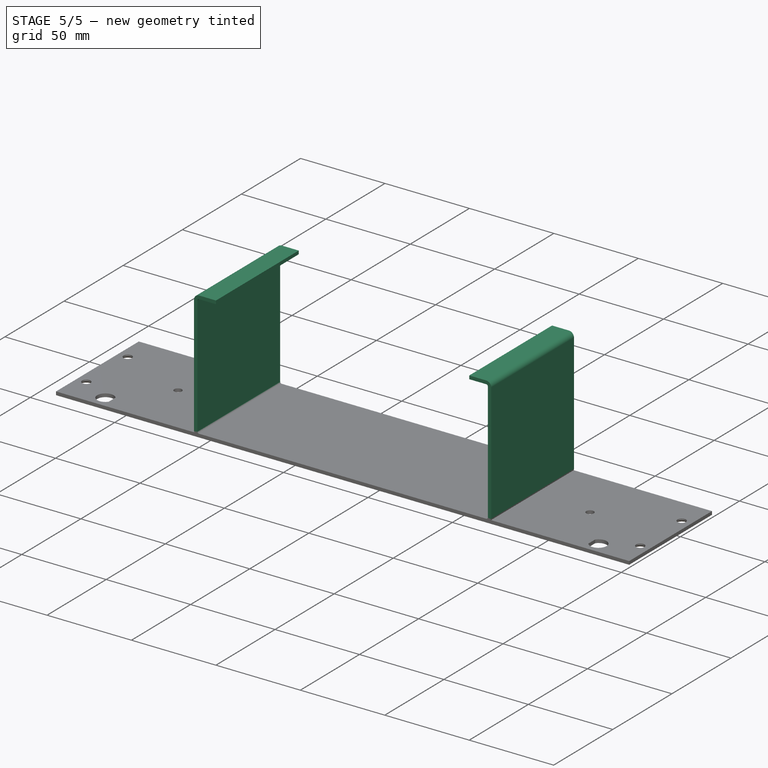
[diagram: stage 5 of 5 — iso view after this stage's code; geometry added in this stage tinted green]
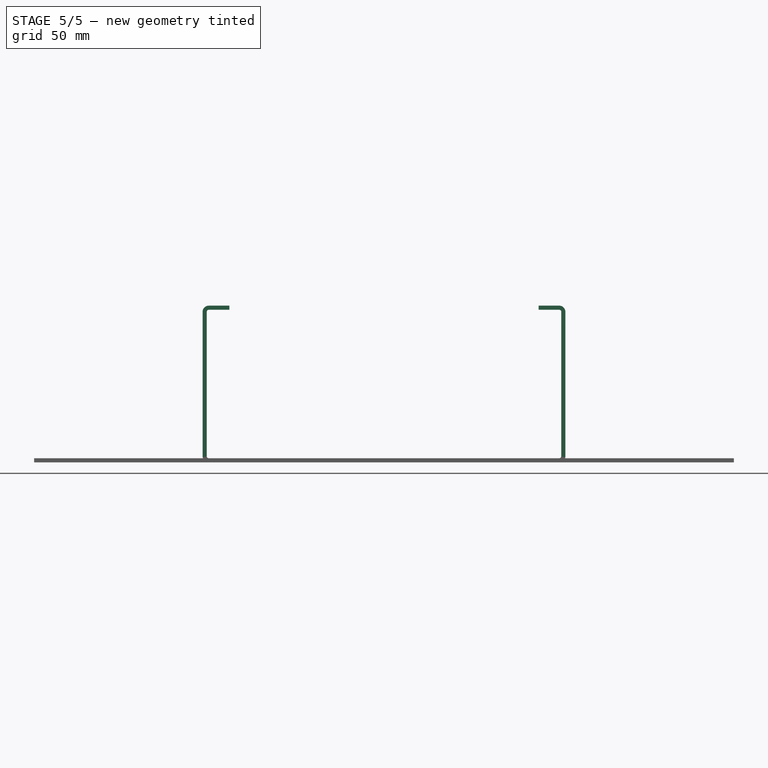
[diagram: stage 5 of 5 — front view after this stage's code; geometry added in this stage tinted green]
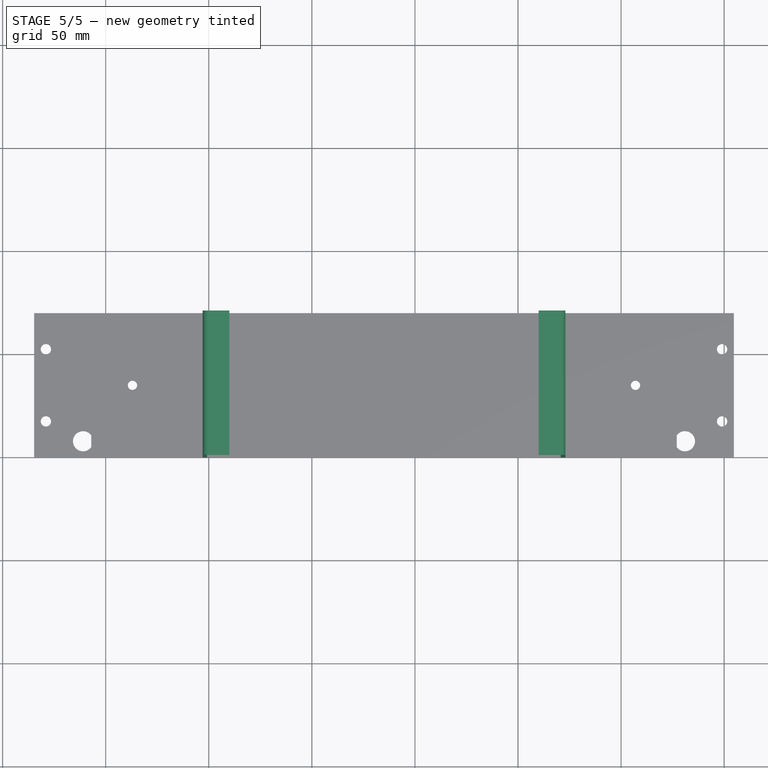
[diagram: stage 5 of 5 — top view after this stage's code; geometry added in this stage tinted green]
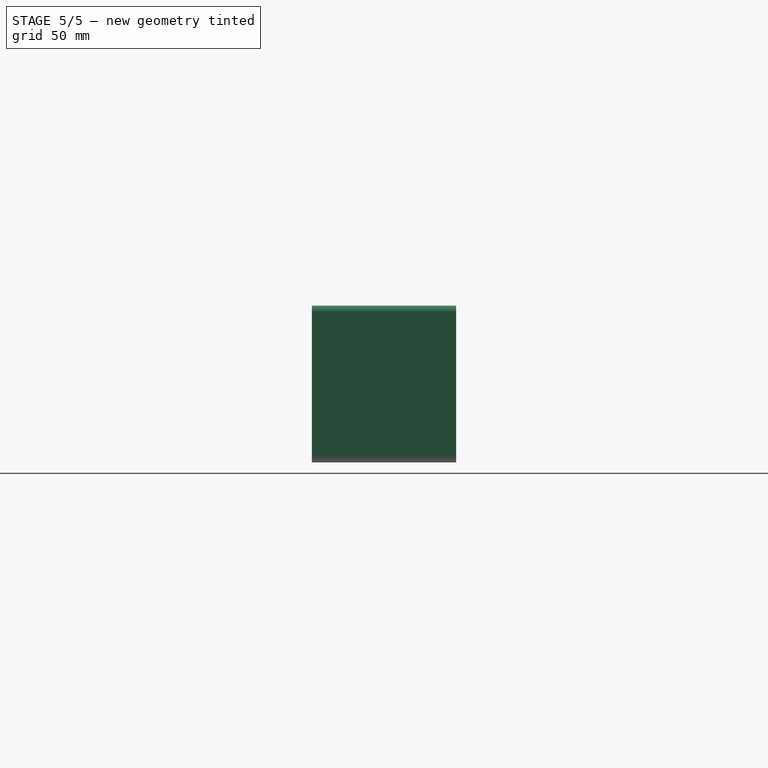
[diagram: stage 5 of 5 — right view after this stage's code; geometry added in this stage tinted green]
FEATURE [Part::FeaturePython] Bend  label="Left Wall"  # WARN: FeaturePython — macro-defined, semantics opaque (R4)
  angle = 90
  baseObject = -> Box [Face1]
  gap1 = 0
  gap2 = 0
  invert = false
  length = 70
  radius = 1
  reliefd = 1
  reliefw = 0.5
FEATURE [Part::FeaturePython] Bend001  label="Right Wall"  # WARN: FeaturePython — macro-defined, semantics opaque (R4)
  angle = 90
  baseObject = -> Bend [Face14]
  gap1 = 0
  gap2 = 0
  invert = false
  length = 70
  radius = 1
  reliefd = 1
  reliefw = 0.5
FEATURE [Part::FeaturePython] Bend002  label="Top Left Flange"  # WARN: FeaturePython — macro-defined, semantics opaque (R4)
  angle = 90
  baseObject = -> Bend001 [Face22]
  gap1 = 0
  gap2 = 0
  invert = false
  length = 10
  radius = 1
  reliefd = 1
  reliefw = 0.5
FEATURE [Part::FeaturePython] Bend003  label="Top Right Flange"  # WARN: FeaturePython — macro-defined, semantics opaque (R4)
  angle = 90
  baseObject = -> Bend002 [Face30]
  gap1 = 0
  gap2 = 0
  invert = false
  length = 10
  radius = 1
  reliefd = 1
  reliefw = 0.5
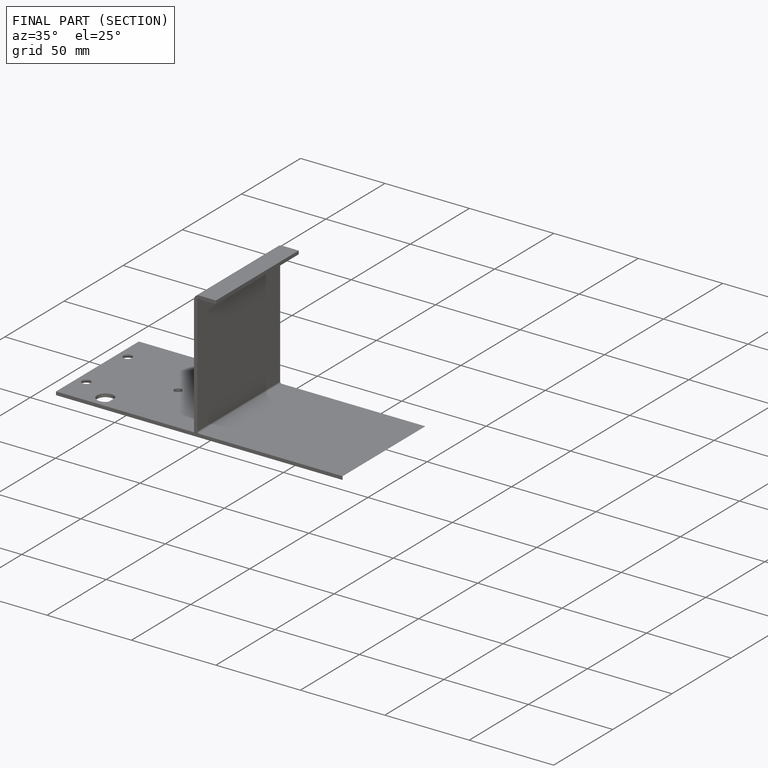
[diagram: finished part — half-section view (interior)]
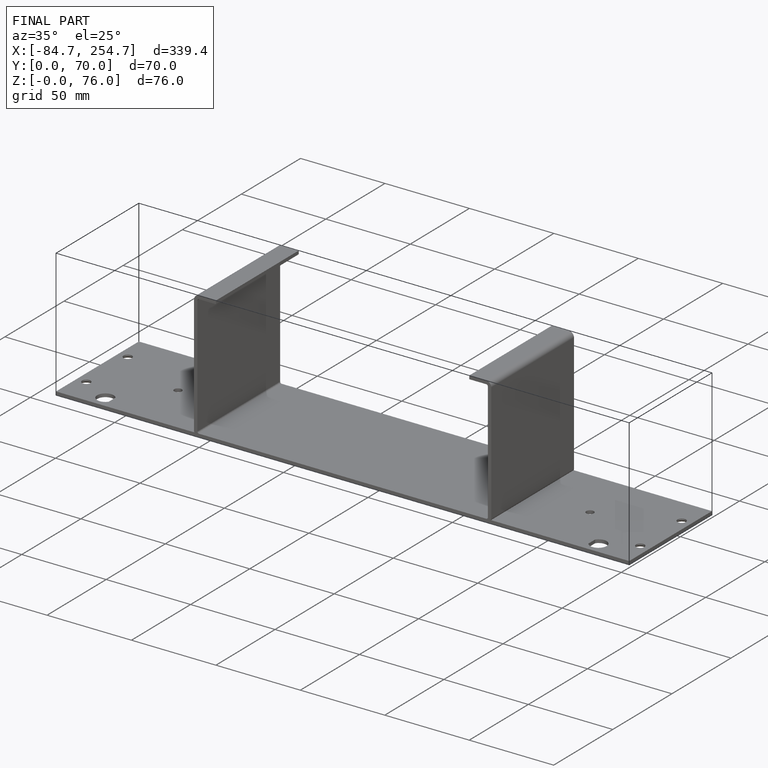
[diagram: finished part — iso view with bounding-box wireframe]
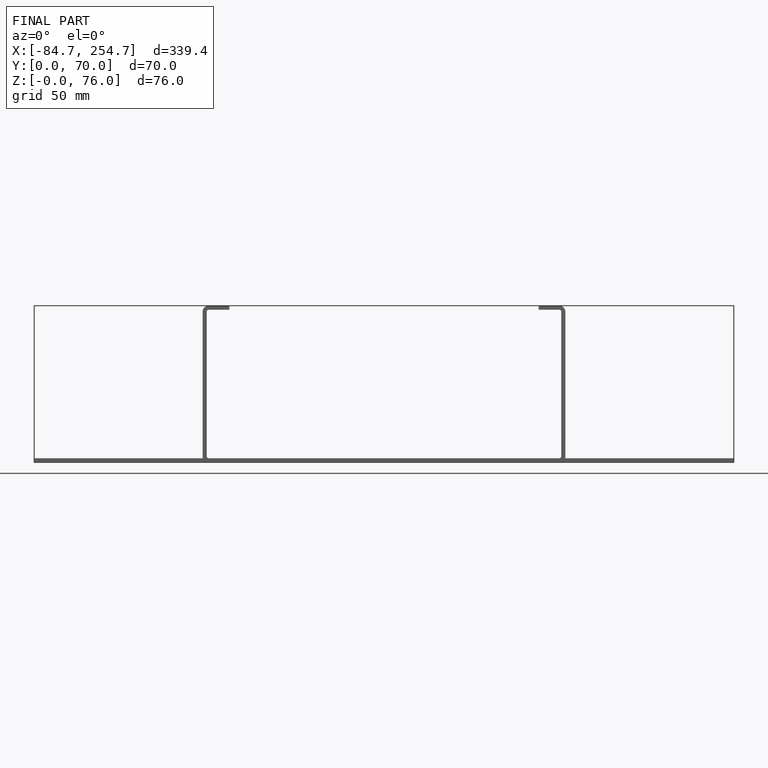
[diagram: finished part — front view with bounding-box wireframe]
